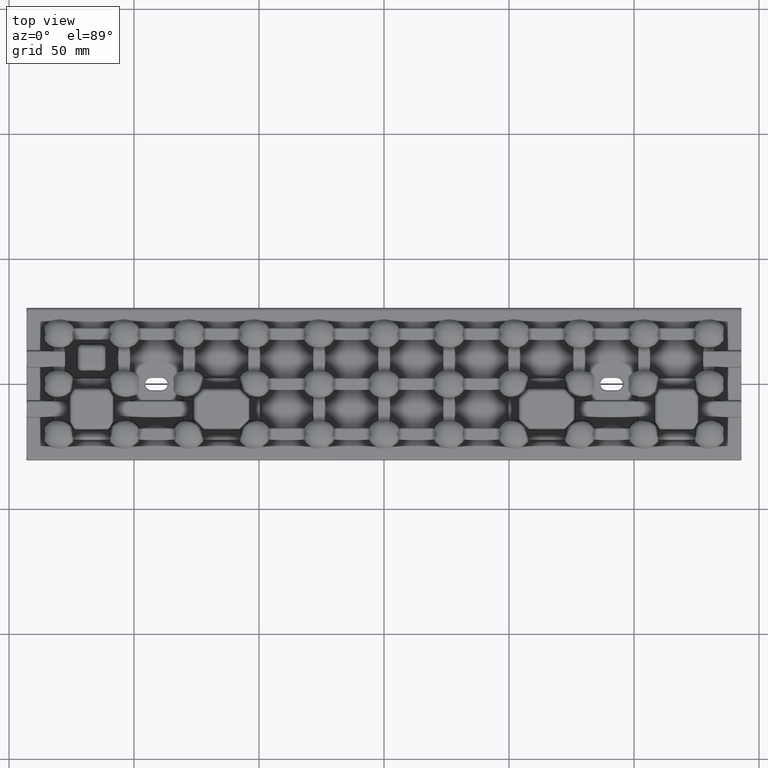
[diagram: clean part render]
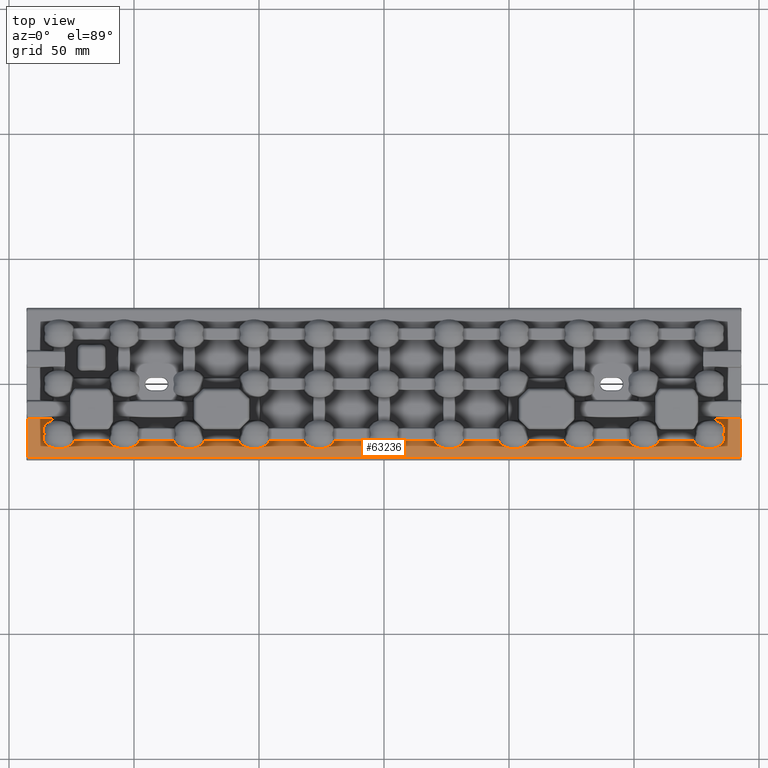
[diagram: same view with one face highlighted and labeled with its STEP entity id]
A machine part, top view. The second image highlights one B-rep face of the part: STEP entity #63236.
In plain terms, the highlighted planar face has unit normal (-0, 0, 1).
Its self-contained STEP definition (entity closure, byte-faithful):
#33 = CARTESIAN_POINT ( 'NONE',  ( 0.0000000000000000000, -13.77131854326631800, 2.000000000000000000 ) ) ;
#42 = EDGE_CURVE ( 'NONE', #24381, #42774, #18755, .T. ) ;
#164 = EDGE_LOOP ( 'NONE', ( #44755, #3819, #52866, #29694, #70680, #57341, #47546, #56463, #61834, #23505, #62755, #31616, #27155, #62822, #54829, #41454, #8503, #44166, #68214, #38834, #44240, #34389, #11275, #31824, #25575, #66596, #58631, #52418, #23872, #55945, #17584, #68420 ) ) ;
#502 = CARTESIAN_POINT ( 'NONE',  ( 0.0000000000000000000, -13.77131854326631800, 2.000000000000000000 ) ) ;
#724 = CARTESIAN_POINT ( 'NONE',  ( 0.0000000000000000000, -22.74142219370179800, 2.000000000000000000 ) ) ;
#894 = CARTESIAN_POINT ( 'NONE',  ( -135.9218705482987000, -23.20788219426480800, 1.999999999999833500 ) ) ;
#1155 = CARTESIAN_POINT ( 'NONE',  ( -130.1653171301655300, -25.88161573803311200, 2.000000000000001800 ) ) ;
#1399 = CARTESIAN_POINT ( 'NONE',  ( -124.5839737115041000, -23.89245808311315500, 2.000000000000043100 ) ) ;
#1511 = EDGE_CURVE ( 'NONE', #49251, #42774, #58076, .T. ) ;
#1854 = VERTEX_POINT ( 'NONE', #47216 ) ;
#2072 = EDGE_CURVE ( 'NONE', #49067, #35729, #5273, .T. ) ;
#2284 = CARTESIAN_POINT ( 'NONE',  ( -3.819095098911098800, -25.03693833895465900, 2.000000000000000400 ) ) ;
#2518 = CARTESIAN_POINT ( 'NONE',  ( 2.409494710444545000, -25.58098130520149000, 2.000000000000000000 ) ) ;
#2634 = CARTESIAN_POINT ( 'NONE',  ( -135.0295530287658900, -15.70677220680920900, 2.000000000000000900 ) ) ;
#2715 = VERTEX_POINT ( 'NONE', #36062 ) ;
#2810 = LINE ( 'NONE', #62675, #31303 ) ;
#2899 = CARTESIAN_POINT ( 'NONE',  ( -30.08719618843136700, -24.89933089372580400, 2.000000000000000400 ) ) ;
#2913 = EDGE_CURVE ( 'NONE', #35729, #58425, #43531, .T. ) ;
#2918 = EDGE_CURVE ( 'NONE', #49251, #61584, #72039, .T. ) ;
#3009 = CARTESIAN_POINT ( 'NONE',  ( -136.1422940776981200, -21.07400144673709600, 2.000000000000005800 ) ) ;
#3139 = CARTESIAN_POINT ( 'NONE',  ( -24.48394804390124300, -25.76204524486451000, 2.000000000000000400 ) ) ;
#3199 = LINE ( 'NONE', #40417, #18265 ) ;
#3205 = CARTESIAN_POINT ( 'NONE',  ( 136.2618435934521100, -18.29336726221924200, 1.999999999999957100 ) ) ;
#3347 = CARTESIAN_POINT ( 'NONE',  ( -82.08719618843134900, -24.89933089372580700, 1.999999999999999600 ) ) ;
#3373 = CARTESIAN_POINT ( 'NONE',  ( -19.87528335633129500, -22.74142219370179800, 2.000000000000000000 ) ) ;
#3435 = CARTESIAN_POINT ( 'NONE',  ( 132.7414221937016500, -14.53910680610571900, 2.000000000000000000 ) ) ;
#3514 = CARTESIAN_POINT ( 'NONE',  ( 97.92453174213517300, -22.88574510278584400, 1.999999999999999100 ) ) ;
#3767 = CARTESIAN_POINT ( 'NONE',  ( 99.91280381156866500, -24.89933089372580000, 1.999999999999999600 ) ) ;
#3809 = CARTESIAN_POINT ( 'NONE',  ( -109.8716287263384900, -23.29291909410071400, 1.999999999999995800 ) ) ;
#3819 = ORIENTED_EDGE ( 'NONE', *, *, #61578, .T. ) ;
#4008 = CARTESIAN_POINT ( 'NONE',  ( 105.5160519560986900, -25.76204524486450600, 1.999999999999998200 ) ) ;
#4040 = CARTESIAN_POINT ( 'NONE',  ( -105.2097865756879100, -25.80791247979607300, 2.000000000000000400 ) ) ;
#4244 = CARTESIAN_POINT ( 'NONE',  ( 110.1247166436687300, -22.74142219370180100, 2.000000000000000000 ) ) ;
#4280 = CARTESIAN_POINT ( 'NONE',  ( -98.69319065038148200, -24.01441757349104100, 2.000000000000001300 ) ) ;
#4440 = EDGE_CURVE ( 'NONE', #58425, #20052, #34469, .T. ) ;
#4443 = CARTESIAN_POINT ( 'NONE',  ( 123.8752834171505100, -22.74142219370180100, 2.000000000000000000 ) ) ;
#4567 = CARTESIAN_POINT ( 'NONE',  ( 126.2228422983642000, -25.05963145252876200, 2.000000000000000400 ) ) ;
#4581 = CARTESIAN_POINT ( 'NONE',  ( -76.48394804390119400, -25.76204524486449900, 2.000000000000001300 ) ) ;
#4662 = CARTESIAN_POINT ( 'NONE',  ( 136.1422941395027500, -18.92599852830038600, 1.999999999993252500 ) ) ;
#4780 = CARTESIAN_POINT ( 'NONE',  ( 0.0000000000000000000, -22.74142219370179800, 2.000000000000000000 ) ) ;
#4805 = CARTESIAN_POINT ( 'NONE',  ( 133.4579265957116300, -25.20361707189319100, 1.999999999999998700 ) ) ;
#4813 = CARTESIAN_POINT ( 'NONE',  ( -71.87528335633130900, -22.74142219370179800, 2.000000000000000000 ) ) ;
#5047 = CARTESIAN_POINT ( 'NONE',  ( 136.2832218297768900, -21.74255756319444900, 1.999999999999999100 ) ) ;
#5067 = CARTESIAN_POINT ( 'NONE',  ( -56.08719618843134900, -24.89933089372579600, 1.999999999999999600 ) ) ;
#5273 = LINE ( 'NONE', #26977, #69450 ) ;
#5298 = CARTESIAN_POINT ( 'NONE',  ( -50.48394804390122200, -25.76204524486449900, 2.000000000000000900 ) ) ;
#5433 = CARTESIAN_POINT ( 'NONE',  ( -136.1422940776982400, -18.92599855326294600, 1.999999999999671400 ) ) ;
#5552 = CARTESIAN_POINT ( 'NONE',  ( -45.87528335633128800, -22.74142219370179800, 2.000000000000000000 ) ) ;
#5730 = CARTESIAN_POINT ( 'NONE',  ( 142.4984859507544300, 0.0000000000000000000, 2.000000000000000000 ) ) ;
#6232 = CARTESIAN_POINT ( 'NONE',  ( -6.014482829595888100, -23.02467077730049300, 1.999999999999996200 ) ) ;
#6613 = CARTESIAN_POINT ( 'NONE',  ( -135.6381149253594700, -23.63379110980486400, 2.000000000000007100 ) ) ;
#6719 = EDGE_CURVE ( 'NONE', #40975, #61584, #14670, .T. ) ;
#6809 = VERTEX_POINT ( 'NONE', #8679 ) ;
#6855 = CARTESIAN_POINT ( 'NONE',  ( -129.1476138462750800, -25.84842763276944700, 2.000000000000002200 ) ) ;
#7005 = CARTESIAN_POINT ( 'NONE',  ( 0.0000000000000000000, 0.0000000000000000000, 2.000000000000000000 ) ) ;
#7096 = CARTESIAN_POINT ( 'NONE',  ( -124.2601434015299400, -23.49627500685725700, 2.000000000000007100 ) ) ;
#7325 = VERTEX_POINT ( 'NONE', #27717 ) ;
#7334 = LINE ( 'NONE', #13604, #43858 ) ;
#7969 = CARTESIAN_POINT ( 'NONE',  ( -2.979219000761800000, -25.38687911242640300, 1.999999999999999100 ) ) ;
#8181 = VERTEX_POINT ( 'NONE', #20942 ) ;
#8228 = CARTESIAN_POINT ( 'NONE',  ( 3.810214397848143500, -25.04115568246543000, 2.000000000000001800 ) ) ;
#8347 = CARTESIAN_POINT ( 'NONE',  ( -135.7238929997454600, -16.47071933913271400, 1.999999999999999600 ) ) ;
#8460 = EDGE_CURVE ( 'NONE', #20052, #73595, #3199, .T. ) ;
#8498 = B_SPLINE_CURVE_WITH_KNOTS ( 'NONE', 3,
 ( #53336, #13459, #6232, #19159, #59092, #24935, #64774, #30657, #70488, #36346, #2284, #42115, #7969, #47855, #13707, #53570, #19402, #59331, #25180, #65002, #30909, #70736, #36590, #2518, #42341, #8228, #48100, #13935, #53817, #19634, #59580, #25406, #65260, #31148, #70977, #36839 ),
 .UNSPECIFIED., .F., .F.,
 ( 4, 2, 2, 2, 2, 2, 2, 2, 2, 2, 2, 2, 2, 2, 2, 2, 2, 4 ),
 ( 0.002273937899494488200, 0.002725115910603036700, 0.003176293921711585300, 0.004078649943928680200, 0.004981005966145776400, 0.005883361988362870900, 0.006785718010579965300, 0.007688074032797061500, 0.008590430055014157800, 0.009492786077231254000, 0.01039514209944835000, 0.01129749812166544600, 0.01310221016609964100, 0.01400456618831674000, 0.01490692221053383800, 0.01580927823275094000, 0.01626045624385948800, 0.01671163425496803200 ),
 .UNSPECIFIED. ) ;
#8503 = ORIENTED_EDGE ( 'NONE', *, *, #41513, .F. ) ;
#8586 = CARTESIAN_POINT ( 'NONE',  ( -29.26557452247500600, -25.28066655375025100, 2.000000000000000000 ) ) ;
#8679 = CARTESIAN_POINT ( 'NONE',  ( 142.4984859507544300, -13.77131854326631800, 2.000000000000000000 ) ) ;
#8830 = CARTESIAN_POINT ( 'NONE',  ( -23.01313341670894300, -25.40276316744352400, 2.000000000000001800 ) ) ;
#8894 = CARTESIAN_POINT ( 'NONE',  ( 136.2385351361121500, -17.64823209951971000, 2.000000000000000000 ) ) ;
#9054 = CARTESIAN_POINT ( 'NONE',  ( -81.26557452247499200, -25.28066655375025500, 2.000000000000000900 ) ) ;
#9101 = EDGE_CURVE ( 'NONE', #40975, #32217, #30757, .T. ) ;
#9474 = CARTESIAN_POINT ( 'NONE',  ( 100.7344254775250200, -25.28066655375025100, 1.999999999999999100 ) ) ;
#9515 = CARTESIAN_POINT ( 'NONE',  ( -109.5195329626777600, -23.79160373366424600, 2.000000000000028400 ) ) ;
#9722 = CARTESIAN_POINT ( 'NONE',  ( 106.9868665832910500, -25.40276316744352400, 2.000000000000000400 ) ) ;
#9757 = CARTESIAN_POINT ( 'NONE',  ( -104.3001023099441700, -25.87772564284690100, 1.999999999999998700 ) ) ;
#10008 = CARTESIAN_POINT ( 'NONE',  ( -98.21100316944138300, -23.42314300327463200, 1.999999999999830800 ) ) ;
#10048 = DIRECTION ( 'NONE',  ( -0.0000000000000000000, 1.000000000000000000, -0.0000000000000000000 ) ) ;
#10278 = CARTESIAN_POINT ( 'NONE',  ( 127.1655502965292600, -25.43801435363306100, 2.000000000000001800 ) ) ;
#10292 = CARTESIAN_POINT ( 'NONE',  ( -75.01313341670891100, -25.40276316744352100, 2.000000000000000900 ) ) ;
#10439 = CARTESIAN_POINT ( 'NONE',  ( 136.1422941395027500, -18.92599852830038600, 1.999999999993252500 ) ) ;
#10520 = CARTESIAN_POINT ( 'NONE',  ( 134.3560911125226800, -24.74748662639309100, 2.000000000000000900 ) ) ;
#10596 = CARTESIAN_POINT ( 'NONE',  ( 0.0000000000000000000, -22.74142219370180100, 2.000000000000000000 ) ) ;
#10782 = CARTESIAN_POINT ( 'NONE',  ( 136.1422941395027000, -21.07400147169969200, 1.999999999993458800 ) ) ;
#10798 = CARTESIAN_POINT ( 'NONE',  ( -55.26557452247497800, -25.28066655375024400, 1.999999999999999600 ) ) ;
#10957 = EDGE_CURVE ( 'NONE', #58102, #32217, #16389, .T. ) ;
#11029 = CARTESIAN_POINT ( 'NONE',  ( -49.01313341670892500, -25.40276316744352400, 2.000000000000000000 ) ) ;
#11275 = ORIENTED_EDGE ( 'NONE', *, *, #65392, .F. ) ;
#11425 = VECTOR ( 'NONE', #23037, 1000.000000000000000 ) ;
#11453 = DIRECTION ( 'NONE',  ( -0.0000000000000000000, 1.000000000000000000, -0.0000000000000000000 ) ) ;
#12206 = LINE ( 'NONE', #65485, #25557 ) ;
#12270 = EDGE_CURVE ( 'NONE', #73595, #6809, #39441, .T. ) ;
#12298 = CARTESIAN_POINT ( 'NONE',  ( 58.12471664366871900, -22.74142219370180100, 2.000000000000000000 ) ) ;
#12333 = CARTESIAN_POINT ( 'NONE',  ( -135.1857516546408000, -24.13450701038100000, 2.000000000000001300 ) ) ;
#12387 = CARTESIAN_POINT ( 'NONE',  ( 58.07542931509948400, -22.88585940025619400, 1.999999999999988700 ) ) ;
#12455 = CARTESIAN_POINT ( 'NONE',  ( 58.01323320651569300, -23.02731689951286100, 2.000000000000064800 ) ) ;
#12535 = CARTESIAN_POINT ( 'NONE',  ( 57.87022910939948900, -23.29524226391948400, 2.000000000000064800 ) ) ;
#12579 = CARTESIAN_POINT ( 'NONE',  ( -128.1420692979925200, -25.69919804812486000, 1.999999999999997100 ) ) ;
#12643 = CARTESIAN_POINT ( 'NONE',  ( 57.78899683055862400, -23.42314300327462500, 1.999999999999831700 ) ) ;
#12656 = CARTESIAN_POINT ( 'NONE',  ( 132.7414221937016500, 0.0000000000000000000, 2.000000000000000000 ) ) ;
#12665 = DIRECTION ( 'NONE',  ( -1.000000000000000000, -0.0000000000000000000, -0.0000000000000000000 ) ) ;
#12688 = VERTEX_POINT ( 'NONE', #40462 ) ;
#12702 = CARTESIAN_POINT ( 'NONE',  ( 57.51995328995989400, -23.79105420026125000, 1.999999999999832100 ) ) ;
#12789 = CARTESIAN_POINT ( 'NONE',  ( 57.30680934961854700, -24.01441757349104100, 1.999999999999998700 ) ) ;
#12823 = CARTESIAN_POINT ( 'NONE',  ( -124.0012696598568500, -23.05978016600126800, 2.000000000000097700 ) ) ;
#12873 = CARTESIAN_POINT ( 'NONE',  ( 56.84746460517043000, -24.41176821703411900, 2.000000000000000000 ) ) ;
#12930 = EDGE_CURVE ( 'NONE', #6809, #38849, #73284, .T. ) ;
#13119 = CARTESIAN_POINT ( 'NONE',  ( 56.59662521674580700, -24.58998557550297900, 2.000000000000000000 ) ) ;
#13186 = CARTESIAN_POINT ( 'NONE',  ( 56.07798419299974300, -24.90442385859973500, 2.000000000000000900 ) ) ;
#13352 = EDGE_CURVE ( 'NONE', #58102, #42145, #7334, .T. ) ;
#13368 = CARTESIAN_POINT ( 'NONE',  ( 55.81021439784814200, -25.04115568246541900, 1.999999999999999100 ) ) ;
#13431 = CARTESIAN_POINT ( 'NONE',  ( 54.98686658329106800, -25.40276316744352400, 1.999999999999999600 ) ) ;
#13459 = CARTESIAN_POINT ( 'NONE',  ( -6.075468257864839600, -22.88574510278582600, 2.000000000000000000 ) ) ;
#13547 = B_SPLINE_CURVE_WITH_KNOTS ( 'NONE', 3,
 ( #71409, #31580, #59998, #37266, #3205, #43029, #8894, #48768, #14617, #54492, #20297, #60238, #26084, #65929, #31833, #71646, #37511, #3435 ),
 .UNSPECIFIED., .F., .F.,
 ( 4, 2, 2, 2, 2, 2, 2, 2, 4 ),
 ( 0.0005961375090278608300, 0.0009801973792107911700, 0.001364257249393721600, 0.002132376989759582500, 0.002900496730125443400, 0.003668616470491304300, 0.004436736210857165200, 0.005204855951223026100, 0.006741095431954745300 ),
 .UNSPECIFIED. ) ;
#13604 = CARTESIAN_POINT ( 'NONE',  ( 0.0000000000000000000, -22.74142219370180100, 2.000000000000000000 ) ) ;
#13611 = CARTESIAN_POINT ( 'NONE',  ( 54.40949471044454100, -25.58098130520150800, 1.999999999999998200 ) ) ;
#13707 = CARTESIAN_POINT ( 'NONE',  ( -2.106550254893620400, -25.64255327724811600, 2.000000000000000000 ) ) ;
#13754 = CARTESIAN_POINT ( 'NONE',  ( 53.51605195609878500, -25.76204524486451000, 1.999999999999999100 ) ) ;
#13908 = CARTESIAN_POINT ( 'NONE',  ( 53.21628997544976900, -25.80702432415001400, 2.000000000000001300 ) ) ;
#13935 = CARTESIAN_POINT ( 'NONE',  ( 4.596625216745813700, -24.58998557550297900, 1.999999999999999600 ) ) ;
#13991 = CARTESIAN_POINT ( 'NONE',  ( 52.61271098874656400, -25.86497171044245400, 2.000000000000002200 ) ) ;
#14045 = CARTESIAN_POINT ( 'NONE',  ( -136.0979048728876500, -17.14833474724197200, 1.999999999999998200 ) ) ;
#14075 = CARTESIAN_POINT ( 'NONE',  ( 52.30840368988429400, -25.87750731758197300, 2.000000000000001800 ) ) ;
#14086 = CARTESIAN_POINT ( 'NONE',  ( 51.69989769005582800, -25.87772564284692200, 2.000000000000002200 ) ) ;
#14151 = CARTESIAN_POINT ( 'NONE',  ( 51.39582775820940000, -25.86552105935654200, 2.000000000000000900 ) ) ;
#14228 = CARTESIAN_POINT ( 'NONE',  ( -71.87528335633130900, -22.74142219370179800, 2.000000000000000000 ) ) ;
#14233 = CARTESIAN_POINT ( 'NONE',  ( 50.79021342431210700, -25.80791247979607000, 2.000000000000001300 ) ) ;
#14297 = CARTESIAN_POINT ( 'NONE',  ( -28.40021609866272500, -25.56753033933710000, 2.000000000000000900 ) ) ;
#14409 = CARTESIAN_POINT ( 'NONE',  ( 50.48887373261408100, -25.76286280273490400, 2.000000000000001800 ) ) ;
#14529 = CARTESIAN_POINT ( 'NONE',  ( -84.07546825786485600, -22.88574510278583700, 2.000000000000000000 ) ) ;
#14556 = CARTESIAN_POINT ( 'NONE',  ( -21.92201580700027100, -24.90442385859973100, 2.000000000000000400 ) ) ;
#14590 = CARTESIAN_POINT ( 'NONE',  ( 49.89344974510638100, -25.64255327724809800, 2.000000000000001300 ) ) ;
#14617 = CARTESIAN_POINT ( 'NONE',  ( 135.9916550852441600, -16.91178437658260900, 2.000000000000001300 ) ) ;
#14670 = B_SPLINE_CURVE_WITH_KNOTS ( 'NONE', 3,
 ( #16016, #16580, #16492, #15780, #15644, #15553, #15542, #15458, #15299, #15058, #14974, #14829, #14818, #14733, #14590, #14409, #14233, #14151, #14086, #14075, #13991, #13908, #13754, #13611, #13431, #13368, #13186, #13119, #12873, #12789, #12702, #12643, #12535, #12455, #12387, #12298 ),
 .UNSPECIFIED., .F., .F.,
 ( 4, 2, 2, 2, 2, 2, 2, 2, 2, 2, 2, 2, 2, 2, 2, 2, 2, 4 ),
 ( 0.002273937899494497300, 0.002725115910603046300, 0.003176293921711595200, 0.004078649943928693200, 0.004981005966145791100, 0.005883361988362889900, 0.006785718010579987900, 0.007688074032797085000, 0.008590430055014183800, 0.009492786077231281700, 0.01039514209944838000, 0.01129749812166547900, 0.01310221016609965100, 0.01400456618831674700, 0.01490692221053384700, 0.01580927823275094700, 0.01626045624385949500, 0.01671163425496804300 ),
 .UNSPECIFIED. ) ;
#14733 = CARTESIAN_POINT ( 'NONE',  ( 49.59978390133729000, -25.56753033933710000, 1.999999999999999600 ) ) ;
#14766 = CARTESIAN_POINT ( 'NONE',  ( -80.40021609866271000, -25.56753033933710400, 2.000000000000000000 ) ) ;
#14818 = CARTESIAN_POINT ( 'NONE',  ( 49.02078099923822000, -25.38687911242641300, 2.000000000000000400 ) ) ;
#14829 = CARTESIAN_POINT ( 'NONE',  ( 48.73442547752503600, -25.28066655375026500, 2.000000000000001800 ) ) ;
#14974 = CARTESIAN_POINT ( 'NONE',  ( 48.18090490108891500, -25.03693833895467000, 2.000000000000001800 ) ) ;
#15058 = CARTESIAN_POINT ( 'NONE',  ( 47.91280381156867200, -24.89933089372581400, 2.000000000000000400 ) ) ;
#15177 = CARTESIAN_POINT ( 'NONE',  ( 101.5997839013372600, -25.56753033933709300, 2.000000000000000400 ) ) ;
#15215 = CARTESIAN_POINT ( 'NONE',  ( -108.8517063202282300, -24.40856611914085800, 1.999999999999931600 ) ) ;
#15292 = AXIS2_PLACEMENT_3D ( 'NONE', #7005, #30893, #70721 ) ;
#15299 = CARTESIAN_POINT ( 'NONE',  ( 47.39758385011843700, -24.58596811551365100, 2.000000000000000400 ) ) ;
#15422 = CARTESIAN_POINT ( 'NONE',  ( 108.0779841929997400, -24.90442385859971700, 2.000000000000000000 ) ) ;
#15458 = CARTESIAN_POINT ( 'NONE',  ( 47.14829367977184700, -24.40856611914085800, 1.999999999999932100 ) ) ;
#15459 = CARTESIAN_POINT ( 'NONE',  ( -103.3872890112534300, -25.86497171044247500, 2.000000000000001300 ) ) ;
#15542 = CARTESIAN_POINT ( 'NONE',  ( 46.68903796839897800, -24.01034952542513100, 1.999999999999932500 ) ) ;
#15553 = CARTESIAN_POINT ( 'NONE',  ( 46.48046703732220000, -23.79160373366426000, 2.000000000000028000 ) ) ;
#15573 = VECTOR ( 'NONE', #64696, 1000.000000000000000 ) ;
#15644 = CARTESIAN_POINT ( 'NONE',  ( 46.21094319566911000, -23.42307350241072300, 2.000000000000029300 ) ) ;
#15702 = CARTESIAN_POINT ( 'NONE',  ( -97.98676679348432100, -23.02731689951287600, 2.000000000000065700 ) ) ;
#15723 = CARTESIAN_POINT ( 'NONE',  ( -135.9868449055932700, -20.36549531281011100, 2.000000000000000400 ) ) ;
#15780 = CARTESIAN_POINT ( 'NONE',  ( 46.12837127366150000, -23.29291909410070700, 1.999999999999995800 ) ) ;
#15981 = CARTESIAN_POINT ( 'NONE',  ( 128.1458189536985200, -25.69997739440759700, 1.999999999999996200 ) ) ;
#15992 = CARTESIAN_POINT ( 'NONE',  ( -73.92201580700027800, -24.90442385859973800, 1.999999999999999100 ) ) ;
#16016 = CARTESIAN_POINT ( 'NONE',  ( 45.87528341715049900, -22.74142219370180100, 2.000000000000000000 ) ) ;
#16049 = EDGE_CURVE ( 'NONE', #38849, #61207, #45426, .T. ) ;
#16221 = CARTESIAN_POINT ( 'NONE',  ( 135.1773489027272900, -24.14248106700900100, 2.000000000000004400 ) ) ;
#16389 = B_SPLINE_CURVE_WITH_KNOTS ( 'NONE', 3,
 ( #29853, #31411, #30576, #29764, #29616, #29673, #29527, #29415, #29352, #29252, #29145, #29094, #28997, #28901, #28842, #28751, #28663, #28595, #28499, #28397, #28342, #28245, #28152, #28094, #28005, #27907, #27760, #27849, #27657, #27604, #27528, #27372, #27284, #27129, #27035, #26877 ),
 .UNSPECIFIED., .F., .F.,
 ( 4, 2, 2, 2, 2, 2, 2, 2, 2, 2, 2, 2, 2, 2, 2, 2, 2, 4 ),
 ( 0.002273937899494488200, 0.002725115910603044500, 0.003176293921711600400, 0.004078649943928698400, 0.004981005966145797200, 0.005883361988362895100, 0.006785718010579991400, 0.007688074032797091000, 0.008590430055014189000, 0.009492786077231286900, 0.01039514209944838500, 0.01129749812166548100, 0.01310221016609968700, 0.01400456618831678900, 0.01490692221053388800, 0.01580927823275098800, 0.01626045624385954000, 0.01671163425496808800 ),
 .UNSPECIFIED. ) ;
#16470 = CARTESIAN_POINT ( 'NONE',  ( -54.40021609866271000, -25.56753033933711100, 2.000000000000000000 ) ) ;
#16492 = CARTESIAN_POINT ( 'NONE',  ( 45.98551717040410800, -23.02467077730050300, 1.999999999999996700 ) ) ;
#16554 = CARTESIAN_POINT ( 'NONE',  ( 136.0389785876762700, -19.27654512880961200, 1.999999999993252500 ) ) ;
#16580 = CARTESIAN_POINT ( 'NONE',  ( 45.92453174213515200, -22.88574510278583700, 1.999999999999999100 ) ) ;
#16673 = LINE ( 'NONE', #53349, #20245 ) ;
#16678 = EDGE_CURVE ( 'NONE', #61727, #42145, #8498, .T. ) ;
#16709 = CARTESIAN_POINT ( 'NONE',  ( -47.92201580700026400, -24.90442385859972800, 2.000000000000001300 ) ) ;
#17584 = ORIENTED_EDGE ( 'NONE', *, *, #20953, .F. ) ;
#17749 = CARTESIAN_POINT ( 'NONE',  ( -136.1422940776981200, -21.07400144673709600, 2.000000000000005800 ) ) ;
#18010 = CARTESIAN_POINT ( 'NONE',  ( -134.3671399652177200, -24.74056889869420300, 2.000000000000000000 ) ) ;
#18254 = CARTESIAN_POINT ( 'NONE',  ( -127.1644983428654400, -25.43745353979287700, 1.999999999999999100 ) ) ;
#18265 = VECTOR ( 'NONE', #40589, 1000.000000000000000 ) ;
#18510 = CARTESIAN_POINT ( 'NONE',  ( -123.8752833563312900, -22.74142219370179800, 2.000000000000000000 ) ) ;
#18530 = CARTESIAN_POINT ( 'NONE',  ( 72.21094319566911700, -23.42307350241073700, 2.000000000000029300 ) ) ;
#18755 = LINE ( 'NONE', #66905, #66037 ) ;
#18793 = VERTEX_POINT ( 'NONE', #36952 ) ;
#19159 = CARTESIAN_POINT ( 'NONE',  ( -5.871628726338489200, -23.29291909410070400, 1.999999999999996200 ) ) ;
#19402 = CARTESIAN_POINT ( 'NONE',  ( -1.209786575687903800, -25.80791247979607300, 2.000000000000001300 ) ) ;
#19530 = EDGE_CURVE ( 'NONE', #61727, #7325, #12206, .T. ) ;
#19634 = CARTESIAN_POINT ( 'NONE',  ( 5.306809349618572600, -24.01441757349103100, 1.999999999999998700 ) ) ;
#19756 = CARTESIAN_POINT ( 'NONE',  ( -136.2704323777130400, -17.90288855391277800, 1.999999999999965800 ) ) ;
#19758 = CARTESIAN_POINT ( 'NONE',  ( -32.01448282959591300, -23.02467077730051100, 1.999999999999995800 ) ) ;
#19794 = VECTOR ( 'NONE', #51365, 1000.000000000000000 ) ;
#20001 = CARTESIAN_POINT ( 'NONE',  ( -27.51112626738595800, -25.76286280273488300, 2.000000000000001300 ) ) ;
#20021 = CARTESIAN_POINT ( 'NONE',  ( 71.87528341715051300, -22.74142219370180100, 2.000000000000000000 ) ) ;
#20052 = VERTEX_POINT ( 'NONE', #70628 ) ;
#20201 = CARTESIAN_POINT ( 'NONE',  ( -84.01448282959587700, -23.02467077730048200, 1.999999999999995300 ) ) ;
#20229 = CARTESIAN_POINT ( 'NONE',  ( -21.15253539482959500, -24.41176821703411500, 2.000000000000000000 ) ) ;
#20245 = VECTOR ( 'NONE', #41391, 1000.000000000000000 ) ;
#20297 = CARTESIAN_POINT ( 'NONE',  ( 135.5611112412837300, -16.26431530748070400, 1.999999999999999600 ) ) ;
#20439 = CARTESIAN_POINT ( 'NONE',  ( -79.51112626738594700, -25.76286280273488700, 2.000000000000000900 ) ) ;
#20641 = CARTESIAN_POINT ( 'NONE',  ( 97.98551717040410800, -23.02467077730050300, 1.999999999999996200 ) ) ;
#20890 = CARTESIAN_POINT ( 'NONE',  ( 102.4888737326140400, -25.76286280273488700, 2.000000000000000900 ) ) ;
#20924 = CARTESIAN_POINT ( 'NONE',  ( -108.0871961884313600, -24.89933089372580700, 2.000000000000000400 ) ) ;
#20942 = CARTESIAN_POINT ( 'NONE',  ( -84.12471658284951600, -22.74142219370179800, 2.000000000000000000 ) ) ;
#20953 = EDGE_CURVE ( 'NONE', #34795, #61207, #13547, .T. ) ;
#21088 = CARTESIAN_POINT ( 'NONE',  ( 32.12471664366871200, -22.74142219370180100, 2.000000000000000000 ) ) ;
#21134 = CARTESIAN_POINT ( 'NONE',  ( 108.8474646051704200, -24.41176821703411200, 2.000000000000000000 ) ) ;
#21176 = CARTESIAN_POINT ( 'NONE',  ( -102.4839480439012500, -25.76204524486451300, 2.000000000000000900 ) ) ;
#21421 = CARTESIAN_POINT ( 'NONE',  ( -97.87528335633130900, -22.74142219370179800, 2.000000000000000000 ) ) ;
#21447 = CARTESIAN_POINT ( 'NONE',  ( -136.0389785381937300, -19.27654512281430900, 2.000000000000000000 ) ) ;
#21470 = CARTESIAN_POINT ( 'NONE',  ( 123.9997907848322600, -23.05678703691174300, 2.000000000000004900 ) ) ;
#21716 = CARTESIAN_POINT ( 'NONE',  ( 129.1529713051907900, -25.84893686805750000, 1.999999999999975400 ) ) ;
#21727 = CARTESIAN_POINT ( 'NONE',  ( -73.15253539482959900, -24.41176821703411900, 1.999999999999999600 ) ) ;
#21800 = VECTOR ( 'NONE', #12665, 1000.000000000000000 ) ;
#21951 = CARTESIAN_POINT ( 'NONE',  ( 135.6355374456140300, -23.63701069212872600, 2.000000000000000400 ) ) ;
#21966 = CARTESIAN_POINT ( 'NONE',  ( -58.01448282959592000, -23.02467077730049300, 1.999999999999996700 ) ) ;
#22212 = CARTESIAN_POINT ( 'NONE',  ( -53.51112626738594700, -25.76286280273488000, 2.000000000000000400 ) ) ;
#22465 = CARTESIAN_POINT ( 'NONE',  ( -47.15253539482959900, -24.41176821703411500, 2.000000000000000000 ) ) ;
#23037 = DIRECTION ( 'NONE',  ( -1.000000000000000000, 0.0000000000000000000, -0.0000000000000000000 ) ) ;
#23391 = DIRECTION ( 'NONE',  ( -1.000000000000000000, -0.0000000000000000000, -0.0000000000000000000 ) ) ;
#23505 = ORIENTED_EDGE ( 'NONE', *, *, #13352, .T. ) ;
#23533 = CARTESIAN_POINT ( 'NONE',  ( -136.2250101643734300, -21.39948659705529700, 1.999999999999894300 ) ) ;
#23728 = EDGE_CURVE ( 'NONE', #34795, #2715, #42732, .T. ) ;
#23790 = CARTESIAN_POINT ( 'NONE',  ( -133.4682248671783200, -25.19933636211294800, 2.000000000000000400 ) ) ;
#23813 = CARTESIAN_POINT ( 'NONE',  ( 0.0000000000000000000, -22.74142219370180100, 2.000000000000000000 ) ) ;
#23839 = EDGE_CURVE ( 'NONE', #35243, #7325, #37223, .T. ) ;
#23845 = B_SPLINE_CURVE_WITH_KNOTS ( 'NONE', 3,
 ( #55646, #44425, #21966, #61867, #27715, #67532, #33411, #73302, #39138, #5067, #44919, #10798, #50652, #16470, #56382, #22212, #62102, #27960, #67780, #33643, #73525, #39387, #5298, #45165, #11029, #50895, #16709, #56617, #22465, #62346, #28203, #68030, #33890, #73770, #39629, #5552 ),
 .UNSPECIFIED., .F., .F.,
 ( 4, 2, 2, 2, 2, 2, 2, 2, 2, 2, 2, 2, 2, 2, 2, 2, 2, 4 ),
 ( 0.002273937899494486500, 0.002725115910603034100, 0.003176293921711582200, 0.004078649943928677600, 0.004981005966145773800, 0.005883361988362869100, 0.006785718010579965300, 0.007688074032797061500, 0.008590430055014156000, 0.009492786077231252200, 0.01039514209944834700, 0.01129749812166544300, 0.01310221016609961300, 0.01400456618831670200, 0.01490692221053379000, 0.01580927823275087700, 0.01626045624385942200, 0.01671163425496796300 ),
 .UNSPECIFIED. ) ;
#23872 = ORIENTED_EDGE ( 'NONE', *, *, #12930, .T. ) ;
#24038 = CARTESIAN_POINT ( 'NONE',  ( -126.2328227882827900, -25.06442460411629700, 1.999999999999998700 ) ) ;
#24361 = VECTOR ( 'NONE', #11453, 1000.000000000000000 ) ;
#24381 = VERTEX_POINT ( 'NONE', #43848 ) ;
#24935 = CARTESIAN_POINT ( 'NONE',  ( -5.519532962677777400, -23.79160373366425700, 2.000000000000027500 ) ) ;
#25180 = CARTESIAN_POINT ( 'NONE',  ( -0.3001023099441837400, -25.87772564284689700, 1.999999999999998700 ) ) ;
#25406 = CARTESIAN_POINT ( 'NONE',  ( 5.788996830558645900, -23.42314300327464600, 1.999999999999830800 ) ) ;
#25519 = CARTESIAN_POINT ( 'NONE',  ( -136.2496153962566200, -18.42130455956766300, 1.999999999999998200 ) ) ;
#25522 = CARTESIAN_POINT ( 'NONE',  ( -31.78905680433091200, -23.42307350241072700, 2.000000000000028900 ) ) ;
#25557 = VECTOR ( 'NONE', #31379, 1000.000000000000000 ) ;
#25575 = ORIENTED_EDGE ( 'NONE', *, *, #2913, .T. ) ;
#25768 = CARTESIAN_POINT ( 'NONE',  ( -26.60417224179061100, -25.86552105935654600, 1.999999999999999600 ) ) ;
#25794 = EDGE_CURVE ( 'NONE', #35243, #12688, #2810, .T. ) ;
#25986 = CARTESIAN_POINT ( 'NONE',  ( -83.78905680433088300, -23.42307350241071600, 2.000000000000028400 ) ) ;
#26020 = CARTESIAN_POINT ( 'NONE',  ( -20.48004671004013800, -23.79105420026124700, 1.999999999999832600 ) ) ;
#26084 = CARTESIAN_POINT ( 'NONE',  ( 135.0098641867538400, -15.72138528649189300, 2.000000000000141700 ) ) ;
#26231 = CARTESIAN_POINT ( 'NONE',  ( -78.60417224179060700, -25.86552105935654200, 1.999999999999999100 ) ) ;
#26408 = CARTESIAN_POINT ( 'NONE',  ( 98.21094319566906000, -23.42307350241071600, 2.000000000000028900 ) ) ;
#26443 = CARTESIAN_POINT ( 'NONE',  ( -110.0754682578648700, -22.88574510278584000, 2.000000000000000400 ) ) ;
#26642 = CARTESIAN_POINT ( 'NONE',  ( 103.3958277582093900, -25.86552105935654200, 2.000000000000001300 ) ) ;
#26679 = CARTESIAN_POINT ( 'NONE',  ( -107.2655745224750100, -25.28066655375026200, 2.000000000000000400 ) ) ;
#26877 = CARTESIAN_POINT ( 'NONE',  ( 32.12471664366871200, -22.74142219370180100, 2.000000000000000000 ) ) ;
#26889 = CARTESIAN_POINT ( 'NONE',  ( 109.5199532899598700, -23.79105420026124300, 1.999999999999830800 ) ) ;
#26928 = CARTESIAN_POINT ( 'NONE',  ( -101.0131334167089000, -25.40276316744351300, 1.999999999999998700 ) ) ;
#26977 = CARTESIAN_POINT ( 'NONE',  ( -132.7414221937016500, 0.0000000000000000000, 2.000000000000000000 ) ) ;
#27035 = CARTESIAN_POINT ( 'NONE',  ( 32.07542931509947000, -22.88585940025619800, 1.999999999999988700 ) ) ;
#27129 = CARTESIAN_POINT ( 'NONE',  ( 32.01323320651571400, -23.02731689951288300, 2.000000000000067100 ) ) ;
#27155 = ORIENTED_EDGE ( 'NONE', *, *, #23839, .F. ) ;
#27230 = CARTESIAN_POINT ( 'NONE',  ( 124.2604177760863700, -23.49660212520230100, 2.000000000000094100 ) ) ;
#27284 = CARTESIAN_POINT ( 'NONE',  ( 31.87022910939949600, -23.29524226391949800, 2.000000000000066600 ) ) ;
#27372 = CARTESIAN_POINT ( 'NONE',  ( 31.78899683055863400, -23.42314300327462800, 1.999999999999832600 ) ) ;
#27466 = CARTESIAN_POINT ( 'NONE',  ( 130.1708131619413700, -25.88151845441947400, 1.999999999999998200 ) ) ;
#27478 = CARTESIAN_POINT ( 'NONE',  ( -72.48004671004015600, -23.79105420026126100, 1.999999999999831200 ) ) ;
#27528 = CARTESIAN_POINT ( 'NONE',  ( 31.51995328995987900, -23.79105420026124300, 1.999999999999832100 ) ) ;
#27599 = VERTEX_POINT ( 'NONE', #14228 ) ;
#27604 = CARTESIAN_POINT ( 'NONE',  ( 31.30680934961855400, -24.01441757349104100, 2.000000000000000000 ) ) ;
#27657 = CARTESIAN_POINT ( 'NONE',  ( 30.84746460517041200, -24.41176821703410800, 1.999999999999999600 ) ) ;
#27701 = CARTESIAN_POINT ( 'NONE',  ( 135.9177729992307200, -23.21528860318215200, 2.000000000000015100 ) ) ;
#27715 = CARTESIAN_POINT ( 'NONE',  ( -57.78905680433091200, -23.42307350241072300, 2.000000000000029300 ) ) ;
#27717 = CARTESIAN_POINT ( 'NONE',  ( -19.87528335633129500, -22.74142219370179800, 2.000000000000000000 ) ) ;
#27760 = CARTESIAN_POINT ( 'NONE',  ( 30.07798419299973600, -24.90442385859972800, 2.000000000000000400 ) ) ;
#27777 = CARTESIAN_POINT ( 'NONE',  ( 58.12471664366871900, -22.74142219370180100, 2.000000000000000000 ) ) ;
#27849 = CARTESIAN_POINT ( 'NONE',  ( 30.59662521674579900, -24.58998557550298300, 2.000000000000000000 ) ) ;
#27907 = CARTESIAN_POINT ( 'NONE',  ( 29.81021439784814200, -25.04115568246541900, 1.999999999999999100 ) ) ;
#27960 = CARTESIAN_POINT ( 'NONE',  ( -52.60417224179060000, -25.86552105935652400, 2.000000000000000900 ) ) ;
#28005 = CARTESIAN_POINT ( 'NONE',  ( 28.98686658329107900, -25.40276316744351700, 1.999999999999999100 ) ) ;
#28048 = CARTESIAN_POINT ( 'NONE',  ( 135.9868455307761500, -20.36550123074935900, 2.000000000000000000 ) ) ;
#28094 = CARTESIAN_POINT ( 'NONE',  ( 28.40949471044455200, -25.58098130520148700, 1.999999999999999600 ) ) ;
#28152 = CARTESIAN_POINT ( 'NONE',  ( 27.51605195609879900, -25.76204524486450600, 1.999999999999999100 ) ) ;
#28176 = EDGE_CURVE ( 'NONE', #69705, #12688, #23845, .T. ) ;
#28203 = CARTESIAN_POINT ( 'NONE',  ( -46.48004671004013500, -23.79105420026125000, 1.999999999999832600 ) ) ;
#28245 = CARTESIAN_POINT ( 'NONE',  ( 27.21628997544979000, -25.80702432415000300, 2.000000000000000900 ) ) ;
#28342 = CARTESIAN_POINT ( 'NONE',  ( 26.61271098874657100, -25.86497171044246100, 2.000000000000000000 ) ) ;
#28397 = CARTESIAN_POINT ( 'NONE',  ( 26.30840368988429700, -25.87750731758199800, 2.000000000000002200 ) ) ;
#28499 = CARTESIAN_POINT ( 'NONE',  ( 25.69989769005581000, -25.87772564284687200, 2.000000000000001300 ) ) ;
#28595 = CARTESIAN_POINT ( 'NONE',  ( 25.39582775820941100, -25.86552105935654600, 2.000000000000000400 ) ) ;
#28663 = CARTESIAN_POINT ( 'NONE',  ( 24.79021342431210000, -25.80791247979607300, 2.000000000000000400 ) ) ;
#28751 = CARTESIAN_POINT ( 'NONE',  ( 24.48887373261407400, -25.76286280273488700, 2.000000000000000900 ) ) ;
#28842 = CARTESIAN_POINT ( 'NONE',  ( 23.89344974510638100, -25.64255327724811600, 2.000000000000000900 ) ) ;
#28901 = CARTESIAN_POINT ( 'NONE',  ( 23.59978390133730700, -25.56753033933709700, 1.999999999999998200 ) ) ;
#28997 = CARTESIAN_POINT ( 'NONE',  ( 23.02078099923820200, -25.38687911242640600, 1.999999999999999100 ) ) ;
#29094 = CARTESIAN_POINT ( 'NONE',  ( 22.73442547752502900, -25.28066655375027200, 1.999999999999999600 ) ) ;
#29145 = CARTESIAN_POINT ( 'NONE',  ( 22.18090490108890500, -25.03693833895466600, 1.999999999999999600 ) ) ;
#29252 = CARTESIAN_POINT ( 'NONE',  ( 21.91280381156866900, -24.89933089372580400, 1.999999999999999100 ) ) ;
#29268 = CARTESIAN_POINT ( 'NONE',  ( -136.2708829629528400, -21.90890649355692300, 1.999999999999999600 ) ) ;
#29352 = CARTESIAN_POINT ( 'NONE',  ( 21.39758385011843700, -24.58596811551364400, 1.999999999999999600 ) ) ;
#29415 = CARTESIAN_POINT ( 'NONE',  ( 21.14829367977186400, -24.40856611914085800, 1.999999999999932100 ) ) ;
#29527 = CARTESIAN_POINT ( 'NONE',  ( 20.68903796839898100, -24.01034952542512400, 1.999999999999932100 ) ) ;
#29546 = CARTESIAN_POINT ( 'NONE',  ( -132.1871808194440000, -25.64495851025165200, 2.000000000000000900 ) ) ;
#29616 = CARTESIAN_POINT ( 'NONE',  ( 20.21094319566911300, -23.42307350241071600, 2.000000000000029300 ) ) ;
#29673 = CARTESIAN_POINT ( 'NONE',  ( 20.48046703732221700, -23.79160373366426000, 2.000000000000028900 ) ) ;
#29694 = ORIENTED_EDGE ( 'NONE', *, *, #42, .T. ) ;
#29764 = CARTESIAN_POINT ( 'NONE',  ( 20.12837127366150700, -23.29291909410070700, 1.999999999999996200 ) ) ;
#29776 = CARTESIAN_POINT ( 'NONE',  ( -125.3521019434021600, -24.55888464460544200, 2.000000000000000400 ) ) ;
#29853 = CARTESIAN_POINT ( 'NONE',  ( 19.87528341715049500, -22.74142219370180100, 2.000000000000000000 ) ) ;
#30494 = VERTEX_POINT ( 'NONE', #5433 ) ;
#30576 = CARTESIAN_POINT ( 'NONE',  ( 19.98551717040409800, -23.02467077730049300, 1.999999999999996700 ) ) ;
#30657 = CARTESIAN_POINT ( 'NONE',  ( -4.851706320228141900, -24.40856611914085800, 1.999999999999932100 ) ) ;
#30757 = LINE ( 'NONE', #64537, #15573 ) ;
#30893 = DIRECTION ( 'NONE',  ( -0.0000000000000000000, 0.0000000000000000000, 1.000000000000000000 ) ) ;
#30909 = CARTESIAN_POINT ( 'NONE',  ( 0.6127109887465745900, -25.86497171044246500, 1.999999999999999600 ) ) ;
#31021 = CARTESIAN_POINT ( 'NONE',  ( -133.7031195810451700, -14.90942886705081000, 2.000000000000000900 ) ) ;
#31148 = CARTESIAN_POINT ( 'NONE',  ( 6.013233206515714400, -23.02731689951288600, 2.000000000000067100 ) ) ;
#31260 = CARTESIAN_POINT ( 'NONE',  ( -136.1788343115358400, -18.80201862068066600, 1.999999999999998700 ) ) ;
#31262 = CARTESIAN_POINT ( 'NONE',  ( -31.31096203160104700, -24.01034952542512700, 1.999999999999931200 ) ) ;
#31303 = VECTOR ( 'NONE', #68362, 1000.000000000000000 ) ;
#31379 = DIRECTION ( 'NONE',  ( -1.000000000000000000, -0.0000000000000000000, -0.0000000000000000000 ) ) ;
#31411 = CARTESIAN_POINT ( 'NONE',  ( 19.92453174213515900, -22.88574510278582600, 2.000000000000000400 ) ) ;
#31489 = EDGE_CURVE ( 'NONE', #69705, #27599, #16673, .T. ) ;
#31518 = CARTESIAN_POINT ( 'NONE',  ( -25.69159631011572700, -25.87750731758198700, 2.000000000000001800 ) ) ;
#31580 = CARTESIAN_POINT ( 'NONE',  ( 136.1784872584689800, -18.80319635000328300, 1.999999999999999600 ) ) ;
#31616 = ORIENTED_EDGE ( 'NONE', *, *, #19530, .T. ) ;
#31733 = CARTESIAN_POINT ( 'NONE',  ( -83.31096203160105100, -24.01034952542512000, 1.999999999999932100 ) ) ;
#31764 = CARTESIAN_POINT ( 'NONE',  ( -20.12977089060052500, -23.29524226391949800, 2.000000000000064800 ) ) ;
#31824 = ORIENTED_EDGE ( 'NONE', *, *, #2072, .T. ) ;
#31833 = CARTESIAN_POINT ( 'NONE',  ( 134.3808463589189400, -15.27342407695920000, 1.999999999999999600 ) ) ;
#31906 = CARTESIAN_POINT ( 'NONE',  ( 97.87528341715048400, -22.74142219370180100, 2.000000000000000000 ) ) ;
#32145 = CARTESIAN_POINT ( 'NONE',  ( 98.68903796839894900, -24.01034952542512400, 1.999999999999932500 ) ) ;
#32217 = VERTEX_POINT ( 'NONE', #21088 ) ;
#32293 = VERTEX_POINT ( 'NONE', #4443 ) ;
#32378 = CARTESIAN_POINT ( 'NONE',  ( 104.3084036898843000, -25.87750731758197600, 2.000000000000001300 ) ) ;
#32410 = CARTESIAN_POINT ( 'NONE',  ( -106.4002160986627000, -25.56753033933710700, 2.000000000000001300 ) ) ;
#32458 = CARTESIAN_POINT ( 'NONE',  ( 123.8752834171505100, -22.74142219370180100, 2.000000000000000000 ) ) ;
#32611 = CARTESIAN_POINT ( 'NONE',  ( 109.8702291093994600, -23.29524226391948700, 2.000000000000063500 ) ) ;
#32650 = CARTESIAN_POINT ( 'NONE',  ( -99.92201580700027800, -24.90442385859972400, 2.000000000000000000 ) ) ;
#32929 = CARTESIAN_POINT ( 'NONE',  ( 124.8146517419494000, -24.13266126593802200, 2.000000000000000000 ) ) ;
#32938 = CARTESIAN_POINT ( 'NONE',  ( -77.69159631011571300, -25.87750731758199800, 1.999999999999998200 ) ) ;
#33105 = DIRECTION ( 'NONE',  ( 0.0000000000000000000, -1.000000000000000000, 0.0000000000000000000 ) ) ;
#33165 = CARTESIAN_POINT ( 'NONE',  ( 131.5221919406147300, -25.78263844890145900, 2.000000000000001300 ) ) ;
#33180 = CARTESIAN_POINT ( 'NONE',  ( -72.12977089060052500, -23.29524226391949400, 2.000000000000066600 ) ) ;
#33234 = CARTESIAN_POINT ( 'NONE',  ( -32.12471658284950800, -22.74142219370179800, 2.000000000000000000 ) ) ;
#33392 = CARTESIAN_POINT ( 'NONE',  ( 136.1281024810783700, -22.74817846352118500, 1.999999999999897200 ) ) ;
#33411 = CARTESIAN_POINT ( 'NONE',  ( -57.31096203160105100, -24.01034952542512400, 1.999999999999931600 ) ) ;
#33643 = CARTESIAN_POINT ( 'NONE',  ( -51.69159631011568500, -25.87750731758198000, 2.000000000000001300 ) ) ;
#33727 = CARTESIAN_POINT ( 'NONE',  ( 136.1422941395027000, -21.07400147169969200, 1.999999999993458800 ) ) ;
#33890 = CARTESIAN_POINT ( 'NONE',  ( -46.12977089060050400, -23.29524226391949100, 2.000000000000066600 ) ) ;
#34389 = ORIENTED_EDGE ( 'NONE', *, *, #64432, .T. ) ;
#34469 = LINE ( 'NONE', #34559, #47907 ) ;
#34559 = CARTESIAN_POINT ( 'NONE',  ( -142.4984859507544300, 0.0000000000000000000, 2.000000000000000000 ) ) ;
#34795 = VERTEX_POINT ( 'NONE', #10439 ) ;
#34957 = CARTESIAN_POINT ( 'NONE',  ( -136.1429460162511600, -22.75040999429770800, 1.999999999999833900 ) ) ;
#35205 = CARTESIAN_POINT ( 'NONE',  ( -130.5049350587613300, -25.87220278261454400, 1.999999999999999100 ) ) ;
#35243 = VERTEX_POINT ( 'NONE', #33234 ) ;
#35439 = CARTESIAN_POINT ( 'NONE',  ( -6.124716582849489800, -22.74142219370179800, 2.000000000000000000 ) ) ;
#35444 = CARTESIAN_POINT ( 'NONE',  ( -124.8256429735101100, -24.13106410958134200, 2.000000000000043100 ) ) ;
#35539 = CARTESIAN_POINT ( 'NONE',  ( 132.7414221937016500, -14.53910680610571900, 2.000000000000000000 ) ) ;
#35729 = VERTEX_POINT ( 'NONE', #60437 ) ;
#35751 = DIRECTION ( 'NONE',  ( -1.000000000000000000, 0.0000000000000000000, -0.0000000000000000000 ) ) ;
#36062 = CARTESIAN_POINT ( 'NONE',  ( 136.1422941395027000, -21.07400147169969200, 1.999999999993458800 ) ) ;
#36346 = CARTESIAN_POINT ( 'NONE',  ( -4.087196188431335000, -24.89933089372581400, 1.999999999999999100 ) ) ;
#36590 = CARTESIAN_POINT ( 'NONE',  ( 1.516051956098790800, -25.76204524486451300, 2.000000000000000900 ) ) ;
#36667 = VERTEX_POINT ( 'NONE', #61890 ) ;
#36707 = CARTESIAN_POINT ( 'NONE',  ( -134.6045349676832100, -15.39920820774245200, 2.000000000000000000 ) ) ;
#36839 = CARTESIAN_POINT ( 'NONE',  ( 6.124716643668728400, -22.74142219370180100, 2.000000000000000000 ) ) ;
#36943 = CARTESIAN_POINT ( 'NONE',  ( -30.60241614988159100, -24.58596811551364400, 2.000000000000000000 ) ) ;
#36952 = CARTESIAN_POINT ( 'NONE',  ( -110.1247165828495000, -22.74142219370179800, 2.000000000000000000 ) ) ;
#37198 = CARTESIAN_POINT ( 'NONE',  ( -24.78371002455022800, -25.80702432414999200, 2.000000000000000900 ) ) ;
#37223 = B_SPLINE_CURVE_WITH_KNOTS ( 'NONE', 3,
 ( #51747, #48210, #19758, #59693, #25522, #65369, #31262, #71084, #36943, #2899, #42707, #8586, #48453, #14297, #54173, #20001, #59933, #25768, #65622, #31518, #71336, #37198, #3139, #42959, #8830, #48697, #14556, #54418, #20229, #60170, #26020, #65862, #31764, #71585, #37441, #3373 ),
 .UNSPECIFIED., .F., .F.,
 ( 4, 2, 2, 2, 2, 2, 2, 2, 2, 2, 2, 2, 2, 2, 2, 2, 2, 4 ),
 ( 0.002273937899494494700, 0.002725115910603041900, 0.003176293921711589200, 0.004078649943928683600, 0.004981005966145777300, 0.005883361988362871700, 0.006785718010579966200, 0.007688074032797059800, 0.008590430055014154300, 0.009492786077231248800, 0.01039514209944834300, 0.01129749812166543800, 0.01310221016609962500, 0.01400456618831671400, 0.01490692221053380500, 0.01580927823275089400, 0.01626045624385943600, 0.01671163425496797700 ),
 .UNSPECIFIED. ) ;
#37266 = CARTESIAN_POINT ( 'NONE',  ( 136.2492803839022600, -18.42400482015261400, 1.999999999999900700 ) ) ;
#37408 = CARTESIAN_POINT ( 'NONE',  ( -136.0389785313407200, -20.72345485393288600, 2.000000000000005800 ) ) ;
#37413 = CARTESIAN_POINT ( 'NONE',  ( -82.60241614988159100, -24.58596811551364800, 1.999999999999999600 ) ) ;
#37441 = CARTESIAN_POINT ( 'NONE',  ( -19.92457068490054400, -22.88585940025618700, 1.999999999999986700 ) ) ;
#37511 = CARTESIAN_POINT ( 'NONE',  ( 133.2326828926808300, -14.69579903531463700, 1.999999999999999100 ) ) ;
#37829 = CARTESIAN_POINT ( 'NONE',  ( 99.39758385011840900, -24.58596811551364100, 2.000000000000000000 ) ) ;
#37862 = CARTESIAN_POINT ( 'NONE',  ( -110.0144828295959100, -23.02467077730050300, 1.999999999999995300 ) ) ;
#38069 = CARTESIAN_POINT ( 'NONE',  ( 105.2162899754497300, -25.80702432414999900, 2.000000000000000000 ) ) ;
#38103 = CARTESIAN_POINT ( 'NONE',  ( -105.5111262673859500, -25.76286280273489400, 2.000000000000001300 ) ) ;
#38309 = CARTESIAN_POINT ( 'NONE',  ( 110.0754293150994600, -22.88585940025618000, 1.999999999999986700 ) ) ;
#38350 = CARTESIAN_POINT ( 'NONE',  ( -99.15253539482959900, -24.41176821703411200, 2.000000000000000900 ) ) ;
#38377 = CARTESIAN_POINT ( 'NONE',  ( -136.1422940776981200, -21.07400144673709600, 2.000000000000005800 ) ) ;
#38402 = CARTESIAN_POINT ( 'NONE',  ( 123.9302361388886600, -22.90246191770890100, 1.999999999999998200 ) ) ;
#38653 = CARTESIAN_POINT ( 'NONE',  ( 125.6321297449729600, -24.73872552520198900, 2.000000000000000000 ) ) ;
#38664 = CARTESIAN_POINT ( 'NONE',  ( -76.78371002455024600, -25.80702432414999200, 1.999999999999999100 ) ) ;
#38834 = ORIENTED_EDGE ( 'NONE', *, *, #51573, .T. ) ;
#38849 = VERTEX_POINT ( 'NONE', #40590 ) ;
#38877 = B_SPLINE_CURVE_WITH_KNOTS ( 'NONE', 3,
 ( #42213, #47966, #65116, #31021, #70842, #36707, #2634, #42457, #8347, #48208, #14045, #53912, #19756, #59691, #25519, #65366, #31260, #71083 ),
 .UNSPECIFIED., .F., .F.,
 ( 4, 2, 2, 2, 2, 2, 2, 2, 4 ),
 ( 0.01228464992329414800, 0.01305256596884860800, 0.01382048201440306600, 0.01535631410551206000, 0.01612423015106655800, 0.01689214619662105300, 0.01766006224217555100, 0.01804402026495280400, 0.01842797828773006000 ),
 .UNSPECIFIED. ) ;
#38888 = CARTESIAN_POINT ( 'NONE',  ( 133.1471665015944600, -25.32715084676986500, 1.999999999999972200 ) ) ;
#38903 = CARTESIAN_POINT ( 'NONE',  ( -71.92457068490055900, -22.88585940025620100, 1.999999999999988700 ) ) ;
#39126 = CARTESIAN_POINT ( 'NONE',  ( 136.2465235797189700, -22.25439224114649100, 1.999999999999999100 ) ) ;
#39138 = CARTESIAN_POINT ( 'NONE',  ( -56.60241614988159100, -24.58596811551365100, 2.000000000000000000 ) ) ;
#39387 = CARTESIAN_POINT ( 'NONE',  ( -50.78371002455022400, -25.80702432414999600, 2.000000000000000400 ) ) ;
#39441 = LINE ( 'NONE', #5730, #24361 ) ;
#39629 = CARTESIAN_POINT ( 'NONE',  ( -45.92457068490051600, -22.88585940025618700, 1.999999999999988200 ) ) ;
#40417 = CARTESIAN_POINT ( 'NONE',  ( 0.0000000000000000000, -29.17765049216839300, 2.000000000000000000 ) ) ;
#40462 = CARTESIAN_POINT ( 'NONE',  ( -45.87528335633128800, -22.74142219370179800, 2.000000000000000000 ) ) ;
#40589 = DIRECTION ( 'NONE',  ( 1.000000000000000000, -0.0000000000000000000, 0.0000000000000000000 ) ) ;
#40590 = CARTESIAN_POINT ( 'NONE',  ( 132.7414221937016500, -13.77131854326631800, 2.000000000000000000 ) ) ;
#40697 = CARTESIAN_POINT ( 'NONE',  ( -135.8340636512710400, -23.35523822525214400, 2.000000000000007100 ) ) ;
#40958 = CARTESIAN_POINT ( 'NONE',  ( -129.4862548426319500, -25.87091284108502300, 2.000000000000002200 ) ) ;
#40975 = VERTEX_POINT ( 'NONE', #50554 ) ;
#41222 = CARTESIAN_POINT ( 'NONE',  ( -124.4690435673189100, -23.76464562316541800, 2.000000000000007500 ) ) ;
#41391 = DIRECTION ( 'NONE',  ( -1.000000000000000000, -0.0000000000000000000, -0.0000000000000000000 ) ) ;
#41454 = ORIENTED_EDGE ( 'NONE', *, *, #31489, .T. ) ;
#41513 = EDGE_CURVE ( 'NONE', #8181, #27599, #72876, .T. ) ;
#41603 = CARTESIAN_POINT ( 'NONE',  ( -132.7414221937016500, -14.53910680023635600, 2.000000000000000000 ) ) ;
#41740 = VECTOR ( 'NONE', #23391, 1000.000000000000000 ) ;
#42115 = CARTESIAN_POINT ( 'NONE',  ( -3.265574522474975300, -25.28066655375025500, 2.000000000000000400 ) ) ;
#42145 = VERTEX_POINT ( 'NONE', #46574 ) ;
#42213 = CARTESIAN_POINT ( 'NONE',  ( -132.7414221937016500, -14.53910680023635600, 2.000000000000000000 ) ) ;
#42341 = CARTESIAN_POINT ( 'NONE',  ( 2.986866583291079000, -25.40276316744351700, 2.000000000000001300 ) ) ;
#42453 = CARTESIAN_POINT ( 'NONE',  ( 72.12837127366148600, -23.29291909410071400, 1.999999999999995800 ) ) ;
#42457 = CARTESIAN_POINT ( 'NONE',  ( -135.5616601696237900, -16.26495588121329300, 2.000000000000001300 ) ) ;
#42707 = CARTESIAN_POINT ( 'NONE',  ( -29.81909509891112400, -25.03693833895466300, 2.000000000000000000 ) ) ;
#42732 = B_SPLINE_CURVE_WITH_KNOTS ( 'NONE', 3,
 ( #4662, #16554, #62196, #28048, #67873, #33727 ),
 .UNSPECIFIED., .F., .F.,
 ( 4, 2, 4 ),
 ( 0.0000000000000000000, 0.001085195773855436500, 0.002170391547710873000 ),
 .UNSPECIFIED. ) ;
#42774 = VERTEX_POINT ( 'NONE', #73363 ) ;
#42959 = CARTESIAN_POINT ( 'NONE',  ( -23.59050528955547300, -25.58098130520151500, 2.000000000000000900 ) ) ;
#43029 = CARTESIAN_POINT ( 'NONE',  ( 136.2706202323637700, -17.90518425458440500, 1.999999999999955800 ) ) ;
#43171 = CARTESIAN_POINT ( 'NONE',  ( -81.81909509891112000, -25.03693833895466300, 2.000000000000000400 ) ) ;
#43531 = LINE ( 'NONE', #502, #41740 ) ;
#43575 = LINE ( 'NONE', #4780, #56935 ) ;
#43597 = CARTESIAN_POINT ( 'NONE',  ( 100.1809049010888700, -25.03693833895467000, 1.999999999999998700 ) ) ;
#43633 = CARTESIAN_POINT ( 'NONE',  ( -109.7890568043309100, -23.42307350241072300, 2.000000000000029300 ) ) ;
#43840 = CARTESIAN_POINT ( 'NONE',  ( 106.4094947104444900, -25.58098130520150400, 1.999999999999998200 ) ) ;
#43848 = CARTESIAN_POINT ( 'NONE',  ( 97.87528341715048400, -22.74142219370180100, 2.000000000000000000 ) ) ;
#43858 = VECTOR ( 'NONE', #35751, 1000.000000000000000 ) ;
#43888 = CARTESIAN_POINT ( 'NONE',  ( -104.6041722417906200, -25.86552105935655300, 2.000000000000000400 ) ) ;
#43920 = EDGE_CURVE ( 'NONE', #8181, #59554, #69044, .T. ) ;
#44124 = CARTESIAN_POINT ( 'NONE',  ( -98.48004671004014200, -23.79105420026125400, 1.999999999999831700 ) ) ;
#44166 = ORIENTED_EDGE ( 'NONE', *, *, #43920, .T. ) ;
#44240 = ORIENTED_EDGE ( 'NONE', *, *, #57349, .F. ) ;
#44409 = CARTESIAN_POINT ( 'NONE',  ( 126.5302444157623000, -25.19818380549397200, 2.000000000000001300 ) ) ;
#44421 = CARTESIAN_POINT ( 'NONE',  ( -75.59050528955545200, -25.58098130520149700, 2.000000000000001300 ) ) ;
#44425 = CARTESIAN_POINT ( 'NONE',  ( -58.07546825786487000, -22.88574510278582600, 2.000000000000000400 ) ) ;
#44522 = LINE ( 'NONE', #10596, #59724 ) ;
#44666 = CARTESIAN_POINT ( 'NONE',  ( 134.0618873556714200, -24.91397246873525600, 1.999999999999998700 ) ) ;
#44755 = ORIENTED_EDGE ( 'NONE', *, *, #58754, .F. ) ;
#44889 = EDGE_CURVE ( 'NONE', #18793, #59554, #44982, .T. ) ;
#44904 = CARTESIAN_POINT ( 'NONE',  ( 136.2390467437208800, -21.40228018579802300, 1.999999999999999600 ) ) ;
#44919 = CARTESIAN_POINT ( 'NONE',  ( -55.81909509891112000, -25.03693833895465600, 1.999999999999999600 ) ) ;
#44982 = B_SPLINE_CURVE_WITH_KNOTS ( 'NONE', 3,
 ( #53859, #26443, #37862, #3809, #43633, #9515, #49370, #15215, #55092, #20924, #60843, #26679, #66544, #32410, #72263, #38103, #4040, #43888, #9757, #49622, #15459, #55334, #21176, #61088, #26928, #66778, #32650, #72521, #38350, #4280, #44124, #10008, #49865, #15702, #55584, #21421 ),
 .UNSPECIFIED., .F., .F.,
 ( 4, 2, 2, 2, 2, 2, 2, 2, 2, 2, 2, 2, 2, 2, 2, 2, 2, 4 ),
 ( 0.002273937899494508100, 0.002725115910603043200, 0.003176293921711577900, 0.004078649943928655900, 0.004981005966145734800, 0.005883361988362813600, 0.006785718010579890700, 0.007688074032796967900, 0.008590430055014046700, 0.009492786077231123900, 0.01039514209944820300, 0.01129749812166528200, 0.01310221016609947900, 0.01400456618831660000, 0.01490692221053372200, 0.01580927823275084200, 0.01626045624385940400, 0.01671163425496796300 ),
 .UNSPECIFIED. ) ;
#45165 = CARTESIAN_POINT ( 'NONE',  ( -49.59050528955546600, -25.58098130520150400, 2.000000000000001300 ) ) ;
#45403 = CARTESIAN_POINT ( 'NONE',  ( -58.12471658284950100, -22.74142219370179800, 2.000000000000000000 ) ) ;
#45426 = LINE ( 'NONE', #12656, #60614 ) ;
#46481 = CARTESIAN_POINT ( 'NONE',  ( -135.5307664853702600, -23.76432537375375600, 2.000000000000000400 ) ) ;
#46574 = CARTESIAN_POINT ( 'NONE',  ( 6.124716643668728400, -22.74142219370180100, 2.000000000000000000 ) ) ;
#46622 = B_SPLINE_CURVE_WITH_KNOTS ( 'NONE', 3,
 ( #17749, #68826, #23533, #63404, #29268, #69082, #34957, #894, #40697, #6613, #46481, #12333, #52214, #18010, #57939, #23790, #63645, #29546, #69346, #35205, #1155, #40958, #6855, #46720, #12579, #52454, #18254, #58191, #24038, #63893, #29776, #69589, #35444, #1399, #41222, #7096, #46956, #12823, #52706, #18510 ),
 .UNSPECIFIED., .F., .F.,
 ( 4, 2, 2, 2, 2, 2, 2, 2, 2, 2, 2, 2, 2, 2, 2, 2, 2, 2, 2, 4 ),
 ( 0.0005957444063413859300, 0.001099365964111005200, 0.001602987521880624200, 0.002610230637419852000, 0.003113852195189453000, 0.003617473752959053600, 0.004624716868498206600, 0.005631959984037359200, 0.006639203099576511700, 0.008653689330654816900, 0.009660932446193969500, 0.01066817556173312000, 0.01167541867727227500, 0.01268266179281142500, 0.01368990490835057800, 0.01469714802388973100, 0.01520076958165930700, 0.01570439113942888300, 0.01620801269719845900, 0.01671163425496803600 ),
 .UNSPECIFIED. ) ;
#46720 = CARTESIAN_POINT ( 'NONE',  ( -128.4766011428502600, -25.76223753101864100, 2.000000000000001300 ) ) ;
#46795 = DIRECTION ( 'NONE',  ( 0.0000000000000000000, -1.000000000000000000, 0.0000000000000000000 ) ) ;
#46956 = CARTESIAN_POINT ( 'NONE',  ( -124.1659226212963600, -23.35571683328262400, 2.000000000000098600 ) ) ;
#47209 = CARTESIAN_POINT ( 'NONE',  ( -142.4984859507544300, -13.77131854326631800, 2.000000000000000000 ) ) ;
#47216 = CARTESIAN_POINT ( 'NONE',  ( -123.8752833563312900, -22.74142219370179800, 2.000000000000000000 ) ) ;
#47346 = PLANE ( 'NONE',  #15292 ) ;
#47546 = ORIENTED_EDGE ( 'NONE', *, *, #6719, .F. ) ;
#47788 = B_SPLINE_CURVE_WITH_KNOTS ( 'NONE', 3,
 ( #32458, #38402, #21470, #61371, #27230, #67059, #32929, #72799, #38653, #4567, #44409, #10278, #50158, #15981, #55865, #21716, #61616, #27466, #67290, #33165, #73033, #38888, #4805, #44666, #10520, #50402, #16221, #56114, #21951, #61852, #27701, #67516, #33392, #73281, #39126, #5047, #44904, #10782 ),
 .UNSPECIFIED., .F., .F.,
 ( 4, 2, 2, 2, 2, 2, 2, 2, 2, 2, 2, 2, 2, 2, 2, 2, 2, 2, 4 ),
 ( 0.002273937899494499900, 0.002777375523140822700, 0.003280813146787145400, 0.004287688394079783100, 0.005294563641372420800, 0.006301438888665058600, 0.007308314135957696300, 0.008315189383250333100, 0.009322064630542970000, 0.01032893987783560900, 0.01234269037242096600, 0.01334956561971364200, 0.01435644086700632100, 0.01536331611429899900, 0.01586675373794533400, 0.01637019136159166900, 0.01687362898523800400, 0.01737706660888434200, 0.01838394185617700200 ),
 .UNSPECIFIED. ) ;
#47855 = CARTESIAN_POINT ( 'NONE',  ( -2.400216098662696600, -25.56753033933710700, 1.999999999999998700 ) ) ;
#47907 = VECTOR ( 'NONE', #33105, 1000.000000000000000 ) ;
#47966 = CARTESIAN_POINT ( 'NONE',  ( -132.9860685462537900, -14.61713905843844300, 1.999999999999999600 ) ) ;
#48100 = CARTESIAN_POINT ( 'NONE',  ( 4.077984192999746700, -24.90442385859972800, 1.999999999999999600 ) ) ;
#48208 = CARTESIAN_POINT ( 'NONE',  ( -135.9914341359277300, -16.91171799446290100, 1.999999999999998700 ) ) ;
#48210 = CARTESIAN_POINT ( 'NONE',  ( -32.07546825786486300, -22.88574510278582600, 2.000000000000000000 ) ) ;
#48453 = CARTESIAN_POINT ( 'NONE',  ( -28.97921900076183000, -25.38687911242641300, 2.000000000000000900 ) ) ;
#48670 = CARTESIAN_POINT ( 'NONE',  ( -84.12471658284951600, -22.74142219370179800, 2.000000000000000000 ) ) ;
#48697 = CARTESIAN_POINT ( 'NONE',  ( -22.18978560215188600, -25.04115568246542600, 2.000000000000001300 ) ) ;
#48768 = CARTESIAN_POINT ( 'NONE',  ( 136.0974078522635000, -17.14688916644176300, 2.000000000000000400 ) ) ;
#48913 = CARTESIAN_POINT ( 'NONE',  ( -80.97921900076183000, -25.38687911242641300, 2.000000000000000000 ) ) ;
#49067 = VERTEX_POINT ( 'NONE', #41603 ) ;
#49251 = VERTEX_POINT ( 'NONE', #20021 ) ;
#49337 = CARTESIAN_POINT ( 'NONE',  ( 101.0207809992381400, -25.38687911242640600, 2.000000000000000400 ) ) ;
#49370 = CARTESIAN_POINT ( 'NONE',  ( -109.3109620316010500, -24.01034952542512700, 1.999999999999931600 ) ) ;
#49580 = CARTESIAN_POINT ( 'NONE',  ( 107.8102143978481600, -25.04115568246542300, 2.000000000000000400 ) ) ;
#49622 = CARTESIAN_POINT ( 'NONE',  ( -103.6915963101156700, -25.87750731758198700, 1.999999999999997800 ) ) ;
#49670 = CARTESIAN_POINT ( 'NONE',  ( 71.87528341715051300, -22.74142219370180100, 2.000000000000000000 ) ) ;
#49865 = CARTESIAN_POINT ( 'NONE',  ( -98.12977089060052500, -23.29524226391949100, 2.000000000000064800 ) ) ;
#50158 = CARTESIAN_POINT ( 'NONE',  ( 127.4890832400938100, -25.53760017513699100, 1.999999999999996200 ) ) ;
#50171 = CARTESIAN_POINT ( 'NONE',  ( -74.18978560215185800, -25.04115568246542300, 2.000000000000000900 ) ) ;
#50402 = CARTESIAN_POINT ( 'NONE',  ( 134.9169149829602600, -24.35940521922120500, 2.000000000000000400 ) ) ;
#50554 = CARTESIAN_POINT ( 'NONE',  ( 45.87528341715049900, -22.74142219370180100, 2.000000000000000000 ) ) ;
#50652 = CARTESIAN_POINT ( 'NONE',  ( -54.97921900076180900, -25.38687911242641000, 1.999999999999999100 ) ) ;
#50895 = CARTESIAN_POINT ( 'NONE',  ( -48.18978560215186500, -25.04115568246542600, 2.000000000000000900 ) ) ;
#51365 = DIRECTION ( 'NONE',  ( -1.000000000000000000, 0.0000000000000000000, -0.0000000000000000000 ) ) ;
#51573 = EDGE_CURVE ( 'NONE', #18793, #1854, #43575, .T. ) ;
#51747 = CARTESIAN_POINT ( 'NONE',  ( -32.12471658284950800, -22.74142219370179800, 2.000000000000000000 ) ) ;
#52214 = CARTESIAN_POINT ( 'NONE',  ( -134.9224648383350900, -24.35481480131970900, 2.000000000000000400 ) ) ;
#52418 = ORIENTED_EDGE ( 'NONE', *, *, #12270, .T. ) ;
#52454 = CARTESIAN_POINT ( 'NONE',  ( -127.4854662483881100, -25.53655645738460200, 1.999999999999997300 ) ) ;
#52706 = CARTESIAN_POINT ( 'NONE',  ( -123.9302996926358000, -22.90264833764902300, 1.999999999999986700 ) ) ;
#52866 = ORIENTED_EDGE ( 'NONE', *, *, #68721, .F. ) ;
#53121 = B_SPLINE_CURVE_WITH_KNOTS ( 'NONE', 3,
 ( #38377, #37408, #15723, #55610, #21447, #61354 ),
 .UNSPECIFIED., .F., .F.,
 ( 4, 2, 4 ),
 ( 0.0000000000000000000, 0.001085195747919801300, 0.002170391495839602700 ),
 .UNSPECIFIED. ) ;
#53336 = CARTESIAN_POINT ( 'NONE',  ( -6.124716582849489800, -22.74142219370179800, 2.000000000000000000 ) ) ;
#53344 = FACE_OUTER_BOUND ( 'NONE', #164, .T. ) ;
#53349 = CARTESIAN_POINT ( 'NONE',  ( 0.0000000000000000000, -22.74142219370179800, 2.000000000000000000 ) ) ;
#53500 = VERTEX_POINT ( 'NONE', #3009 ) ;
#53570 = CARTESIAN_POINT ( 'NONE',  ( -1.511126267385930900, -25.76286280273489400, 2.000000000000000000 ) ) ;
#53817 = CARTESIAN_POINT ( 'NONE',  ( 4.847464605170424400, -24.41176821703411500, 1.999999999999999100 ) ) ;
#53859 = CARTESIAN_POINT ( 'NONE',  ( -110.1247165828495000, -22.74142219370179800, 2.000000000000000000 ) ) ;
#53912 = CARTESIAN_POINT ( 'NONE',  ( -136.2385174970671600, -17.64849101375362700, 1.999999999999997800 ) ) ;
#54173 = CARTESIAN_POINT ( 'NONE',  ( -28.10655025489364800, -25.64255327724811200, 2.000000000000001300 ) ) ;
#54418 = CARTESIAN_POINT ( 'NONE',  ( -21.40337478325421800, -24.58998557550298600, 2.000000000000000400 ) ) ;
#54492 = CARTESIAN_POINT ( 'NONE',  ( 135.7217128629236500, -16.46742553996365600, 2.000000000000001800 ) ) ;
#54646 = CARTESIAN_POINT ( 'NONE',  ( -80.10655025489363400, -25.64255327724811200, 2.000000000000000900 ) ) ;
#54829 = ORIENTED_EDGE ( 'NONE', *, *, #28176, .F. ) ;
#55055 = CARTESIAN_POINT ( 'NONE',  ( 101.8934497451063900, -25.64255327724811600, 2.000000000000000900 ) ) ;
#55092 = CARTESIAN_POINT ( 'NONE',  ( -108.6024161498816100, -24.58596811551364400, 2.000000000000000400 ) ) ;
#55294 = CARTESIAN_POINT ( 'NONE',  ( 108.5966252167458400, -24.58998557550296500, 2.000000000000000400 ) ) ;
#55334 = CARTESIAN_POINT ( 'NONE',  ( -102.7837100245501700, -25.80702432414999200, 2.000000000000000900 ) ) ;
#55584 = CARTESIAN_POINT ( 'NONE',  ( -97.92457068490054400, -22.88585940025619800, 1.999999999999989100 ) ) ;
#55610 = CARTESIAN_POINT ( 'NONE',  ( -135.9868454775445100, -19.63449877822510500, 2.000000000000000000 ) ) ;
#55646 = CARTESIAN_POINT ( 'NONE',  ( -58.12471658284950100, -22.74142219370179800, 2.000000000000000000 ) ) ;
#55865 = CARTESIAN_POINT ( 'NONE',  ( 128.4800520800545800, -25.76285739048201900, 1.999999999999974500 ) ) ;
#55878 = CARTESIAN_POINT ( 'NONE',  ( -73.40337478325422200, -24.58998557550299000, 1.999999999999998700 ) ) ;
#55945 = ORIENTED_EDGE ( 'NONE', *, *, #16049, .T. ) ;
#56114 = CARTESIAN_POINT ( 'NONE',  ( 135.5264302972434500, -23.76947984010437100, 2.000000000000004400 ) ) ;
#56382 = CARTESIAN_POINT ( 'NONE',  ( -54.10655025489366200, -25.64255327724813000, 2.000000000000001300 ) ) ;
#56451 = CARTESIAN_POINT ( 'NONE',  ( -97.87528335633130900, -22.74142219370179800, 2.000000000000000000 ) ) ;
#56463 = ORIENTED_EDGE ( 'NONE', *, *, #9101, .T. ) ;
#56617 = CARTESIAN_POINT ( 'NONE',  ( -47.40337478325419300, -24.58998557550297900, 2.000000000000001800 ) ) ;
#56935 = VECTOR ( 'NONE', #61585, 1000.000000000000000 ) ;
#57341 = ORIENTED_EDGE ( 'NONE', *, *, #2918, .T. ) ;
#57349 = EDGE_CURVE ( 'NONE', #53500, #1854, #46622, .T. ) ;
#57939 = CARTESIAN_POINT ( 'NONE',  ( -134.0749459474556900, -24.90702599790493800, 2.000000000000000000 ) ) ;
#58076 = B_SPLINE_CURVE_WITH_KNOTS ( 'NONE', 3,
 ( #49670, #69105, #69280, #42453, #18530, #68850, #68602, #68516, #68359, #68114, #68020, #67868, #67712, #67614, #67523, #67471, #67296, #67069, #67025, #66920, #66827, #66587, #66443, #66352, #66116, #65953, #65857, #65703, #65616, #65529, #65457, #65363, #65280, #65113, #64792, #64634 ),
 .UNSPECIFIED., .F., .F.,
 ( 4, 2, 2, 2, 2, 2, 2, 2, 2, 2, 2, 2, 2, 2, 2, 2, 2, 4 ),
 ( 0.002273937899494504700, 0.002725115910603048400, 0.003176293921711592200, 0.004078649943928680200, 0.004981005966145767700, 0.005883361988362855200, 0.006785718010579942800, 0.007688074032797030300, 0.008590430055014117900, 0.009492786077231205400, 0.01039514209944829300, 0.01129749812166538000, 0.01310221016609959700, 0.01400456618831672500, 0.01490692221053385200, 0.01580927823275097800, 0.01626045624385954000, 0.01671163425496809800 ),
 .UNSPECIFIED. ) ;
#58102 = VERTEX_POINT ( 'NONE', #59285 ) ;
#58191 = CARTESIAN_POINT ( 'NONE',  ( -126.5381935561330800, -25.20134653000701500, 1.999999999999998700 ) ) ;
#58425 = VERTEX_POINT ( 'NONE', #47209 ) ;
#58631 = ORIENTED_EDGE ( 'NONE', *, *, #8460, .T. ) ;
#58754 = EDGE_CURVE ( 'NONE', #32293, #2715, #47788, .T. ) ;
#59092 = CARTESIAN_POINT ( 'NONE',  ( -5.789056804330884100, -23.42307350241071300, 2.000000000000028400 ) ) ;
#59285 = CARTESIAN_POINT ( 'NONE',  ( 19.87528341715049500, -22.74142219370180100, 2.000000000000000000 ) ) ;
#59331 = CARTESIAN_POINT ( 'NONE',  ( -0.6041722417905918100, -25.86552105935654900, 2.000000000000000900 ) ) ;
#59455 = B_SPLINE_CURVE_WITH_KNOTS ( 'NONE', 3,
 ( #31906, #3514, #20641, #60564, #26408, #66270, #32145, #71982, #37829, #3767, #43597, #9474, #49337, #15177, #55055, #20890, #60804, #26642, #66505, #32378, #72223, #38069, #4008, #43840, #9722, #49580, #15422, #55294, #21134, #61049, #26889, #66739, #32611, #72483, #38309, #4244 ),
 .UNSPECIFIED., .F., .F.,
 ( 4, 2, 2, 2, 2, 2, 2, 2, 2, 2, 2, 2, 2, 2, 2, 2, 2, 4 ),
 ( 0.002273937899494485200, 0.002725115910603035400, 0.003176293921711585700, 0.004078649943928687100, 0.004981005966145786800, 0.005883361988362888200, 0.006785718010579988800, 0.007688074032797089300, 0.008590430055014190700, 0.009492786077231290400, 0.01039514209944839400, 0.01129749812166549300, 0.01310221016609965100, 0.01400456618831673300, 0.01490692221053381200, 0.01580927823275089100, 0.01626045624385943200, 0.01671163425496797000 ),
 .UNSPECIFIED. ) ;
#59554 = VERTEX_POINT ( 'NONE', #56451 ) ;
#59580 = CARTESIAN_POINT ( 'NONE',  ( 5.519953289959882900, -23.79105420026125000, 1.999999999999830800 ) ) ;
#59691 = CARTESIAN_POINT ( 'NONE',  ( -136.2620193228006500, -18.29081751266165800, 1.999999999999965800 ) ) ;
#59693 = CARTESIAN_POINT ( 'NONE',  ( -31.87162872633851100, -23.29291909410071100, 1.999999999999995800 ) ) ;
#59724 = VECTOR ( 'NONE', #61921, 1000.000000000000000 ) ;
#59933 = CARTESIAN_POINT ( 'NONE',  ( -27.20978657568792900, -25.80791247979607300, 1.999999999999999600 ) ) ;
#59998 = CARTESIAN_POINT ( 'NONE',  ( 136.2075762329402000, -18.67836649761456900, 1.999999999999900700 ) ) ;
#60139 = CARTESIAN_POINT ( 'NONE',  ( -83.87162872633850000, -23.29291909410069600, 1.999999999999996200 ) ) ;
#60170 = CARTESIAN_POINT ( 'NONE',  ( -20.69319065038144600, -24.01441757349104500, 2.000000000000000400 ) ) ;
#60216 = CARTESIAN_POINT ( 'NONE',  ( 142.4984859507544300, -29.17765049216839300, 2.000000000000000000 ) ) ;
#60238 = CARTESIAN_POINT ( 'NONE',  ( 135.2064849617534900, -15.89243972920737300, 1.999999999999999600 ) ) ;
#60386 = CARTESIAN_POINT ( 'NONE',  ( -79.20978657568791400, -25.80791247979608000, 1.999999999999999600 ) ) ;
#60437 = CARTESIAN_POINT ( 'NONE',  ( -132.7414221937016500, -13.77131854326631800, 2.000000000000000000 ) ) ;
#60564 = CARTESIAN_POINT ( 'NONE',  ( 98.12837127366148600, -23.29291909410070000, 1.999999999999995300 ) ) ;
#60614 = VECTOR ( 'NONE', #46795, 1000.000000000000000 ) ;
#60804 = CARTESIAN_POINT ( 'NONE',  ( 102.7902134243120900, -25.80791247979607300, 2.000000000000001300 ) ) ;
#60843 = CARTESIAN_POINT ( 'NONE',  ( -107.8190950989111100, -25.03693833895466300, 2.000000000000000000 ) ) ;
#61049 = CARTESIAN_POINT ( 'NONE',  ( 109.3068093496185800, -24.01441757349104500, 2.000000000000000400 ) ) ;
#61088 = CARTESIAN_POINT ( 'NONE',  ( -101.5905052895554900, -25.58098130520149400, 1.999999999999999600 ) ) ;
#61207 = VERTEX_POINT ( 'NONE', #35539 ) ;
#61354 = CARTESIAN_POINT ( 'NONE',  ( -136.1422940776982400, -18.92599855326294600, 1.999999999999671400 ) ) ;
#61371 = CARTESIAN_POINT ( 'NONE',  ( 124.1645780606722000, -23.35362941273794800, 2.000000000000004400 ) ) ;
#61578 = EDGE_CURVE ( 'NONE', #32293, #36667, #44522, .T. ) ;
#61584 = VERTEX_POINT ( 'NONE', #27777 ) ;
#61585 = DIRECTION ( 'NONE',  ( -1.000000000000000000, -0.0000000000000000000, -0.0000000000000000000 ) ) ;
#61616 = CARTESIAN_POINT ( 'NONE',  ( 129.4921823800494800, -25.87118710287924400, 1.999999999999998200 ) ) ;
#61631 = CARTESIAN_POINT ( 'NONE',  ( -72.69319065038148200, -24.01441757349104100, 1.999999999999998700 ) ) ;
#61727 = VERTEX_POINT ( 'NONE', #35439 ) ;
#61834 = ORIENTED_EDGE ( 'NONE', *, *, #10957, .F. ) ;
#61852 = CARTESIAN_POINT ( 'NONE',  ( 135.8308097010381600, -23.36029542155192100, 2.000000000000000400 ) ) ;
#61867 = CARTESIAN_POINT ( 'NONE',  ( -57.87162872633852100, -23.29291909410070000, 1.999999999999996200 ) ) ;
#61890 = CARTESIAN_POINT ( 'NONE',  ( 110.1247166436687300, -22.74142219370180100, 2.000000000000000000 ) ) ;
#61921 = DIRECTION ( 'NONE',  ( -1.000000000000000000, 0.0000000000000000000, -0.0000000000000000000 ) ) ;
#62102 = CARTESIAN_POINT ( 'NONE',  ( -53.20978657568791400, -25.80791247979607700, 2.000000000000000400 ) ) ;
#62196 = CARTESIAN_POINT ( 'NONE',  ( 135.9868449588243800, -19.63450467822035600, 2.000000000000000000 ) ) ;
#62346 = CARTESIAN_POINT ( 'NONE',  ( -46.69319065038145300, -24.01441757349104500, 2.000000000000000400 ) ) ;
#62675 = CARTESIAN_POINT ( 'NONE',  ( 0.0000000000000000000, -22.74142219370179800, 2.000000000000000000 ) ) ;
#62755 = ORIENTED_EDGE ( 'NONE', *, *, #16678, .F. ) ;
#62822 = ORIENTED_EDGE ( 'NONE', *, *, #25794, .T. ) ;
#63236 = ADVANCED_FACE ( 'NONE', ( #53344 ), #47346, .T. ) ;
#63404 = CARTESIAN_POINT ( 'NONE',  ( -136.2658532199943100, -21.73661234494732900, 1.999999999999894300 ) ) ;
#63645 = CARTESIAN_POINT ( 'NONE',  ( -133.1520102837674200, -25.32548094211859500, 2.000000000000000900 ) ) ;
#63893 = CARTESIAN_POINT ( 'NONE',  ( -125.6411868399201800, -24.74425466473606100, 1.999999999999998700 ) ) ;
#64432 = EDGE_CURVE ( 'NONE', #53500, #30494, #53121, .T. ) ;
#64537 = CARTESIAN_POINT ( 'NONE',  ( 0.0000000000000000000, -22.74142219370180100, 2.000000000000000000 ) ) ;
#64634 = CARTESIAN_POINT ( 'NONE',  ( 84.12471664366871900, -22.74142219370180100, 2.000000000000000000 ) ) ;
#64696 = DIRECTION ( 'NONE',  ( -1.000000000000000000, 0.0000000000000000000, -0.0000000000000000000 ) ) ;
#64774 = CARTESIAN_POINT ( 'NONE',  ( -5.310962031601023100, -24.01034952542512700, 1.999999999999932500 ) ) ;
#64792 = CARTESIAN_POINT ( 'NONE',  ( 84.07542931509947000, -22.88585940025620100, 1.999999999999988200 ) ) ;
#65002 = CARTESIAN_POINT ( 'NONE',  ( 0.3084036898843033900, -25.87750731758198300, 1.999999999999998200 ) ) ;
#65113 = CARTESIAN_POINT ( 'NONE',  ( 84.01323320651567900, -23.02731689951287600, 2.000000000000066200 ) ) ;
#65116 = CARTESIAN_POINT ( 'NONE',  ( -133.2295774998434600, -14.70703566817636200, 2.000000000000000900 ) ) ;
#65260 = CARTESIAN_POINT ( 'NONE',  ( 5.870229109399493200, -23.29524226391950100, 2.000000000000067100 ) ) ;
#65280 = CARTESIAN_POINT ( 'NONE',  ( 83.87022910939946000, -23.29524226391949400, 2.000000000000066200 ) ) ;
#65363 = CARTESIAN_POINT ( 'NONE',  ( 83.78899683055864500, -23.42314300327462500, 1.999999999999832100 ) ) ;
#65366 = CARTESIAN_POINT ( 'NONE',  ( -136.2080084451848200, -18.67637461135471000, 1.999999999999997800 ) ) ;
#65369 = CARTESIAN_POINT ( 'NONE',  ( -31.51953296267780800, -23.79160373366426400, 2.000000000000027500 ) ) ;
#65392 = EDGE_CURVE ( 'NONE', #49067, #30494, #38877, .T. ) ;
#65457 = CARTESIAN_POINT ( 'NONE',  ( 83.51995328995987200, -23.79105420026123600, 1.999999999999832100 ) ) ;
#65485 = CARTESIAN_POINT ( 'NONE',  ( 0.0000000000000000000, -22.74142219370179800, 2.000000000000000000 ) ) ;
#65529 = CARTESIAN_POINT ( 'NONE',  ( 83.30680934961856100, -24.01441757349103800, 1.999999999999999600 ) ) ;
#65616 = CARTESIAN_POINT ( 'NONE',  ( 82.84746460517044400, -24.41176821703410500, 1.999999999999999600 ) ) ;
#65622 = CARTESIAN_POINT ( 'NONE',  ( -26.30010230994421500, -25.87772564284691500, 2.000000000000002200 ) ) ;
#65703 = CARTESIAN_POINT ( 'NONE',  ( 82.59662521674580700, -24.58998557550296100, 2.000000000000001300 ) ) ;
#65834 = CARTESIAN_POINT ( 'NONE',  ( -83.51953296267777200, -23.79160373366425300, 2.000000000000028400 ) ) ;
#65857 = CARTESIAN_POINT ( 'NONE',  ( 82.07798419299976400, -24.90442385859970600, 2.000000000000000900 ) ) ;
#65862 = CARTESIAN_POINT ( 'NONE',  ( -20.21100316944138300, -23.42314300327463200, 1.999999999999832600 ) ) ;
#65929 = CARTESIAN_POINT ( 'NONE',  ( 134.5966890448798900, -15.41184421312375500, 2.000000000000141200 ) ) ;
#65953 = CARTESIAN_POINT ( 'NONE',  ( 81.81021439784814200, -25.04115568246541200, 2.000000000000000000 ) ) ;
#66037 = VECTOR ( 'NONE', #66665, 1000.000000000000000 ) ;
#66085 = CARTESIAN_POINT ( 'NONE',  ( -78.30010230994419400, -25.87772564284687600, 1.999999999999998200 ) ) ;
#66116 = CARTESIAN_POINT ( 'NONE',  ( 80.98686658329113200, -25.40276316744352100, 2.000000000000000900 ) ) ;
#66270 = CARTESIAN_POINT ( 'NONE',  ( 98.48046703732217100, -23.79160373366425000, 2.000000000000028400 ) ) ;
#66352 = CARTESIAN_POINT ( 'NONE',  ( 80.40949471044459100, -25.58098130520149400, 2.000000000000000000 ) ) ;
#66443 = CARTESIAN_POINT ( 'NONE',  ( 79.51605195609883500, -25.76204524486449500, 1.999999999999999100 ) ) ;
#66505 = CARTESIAN_POINT ( 'NONE',  ( 103.6998976900558200, -25.87772564284691500, 2.000000000000001800 ) ) ;
#66544 = CARTESIAN_POINT ( 'NONE',  ( -106.9792190007618300, -25.38687911242641300, 2.000000000000000900 ) ) ;
#66587 = CARTESIAN_POINT ( 'NONE',  ( 79.21628997544982600, -25.80702432414999200, 2.000000000000000400 ) ) ;
#66596 = ORIENTED_EDGE ( 'NONE', *, *, #4440, .T. ) ;
#66665 = DIRECTION ( 'NONE',  ( -1.000000000000000000, 0.0000000000000000000, -0.0000000000000000000 ) ) ;
#66739 = CARTESIAN_POINT ( 'NONE',  ( 109.7889968305586200, -23.42314300327462100, 1.999999999999830100 ) ) ;
#66778 = CARTESIAN_POINT ( 'NONE',  ( -100.1897856021518900, -25.04115568246542600, 1.999999999999999600 ) ) ;
#66827 = CARTESIAN_POINT ( 'NONE',  ( 78.61271098874662800, -25.86497171044245000, 2.000000000000000000 ) ) ;
#66905 = CARTESIAN_POINT ( 'NONE',  ( 0.0000000000000000000, -22.74142219370180100, 2.000000000000000000 ) ) ;
#66920 = CARTESIAN_POINT ( 'NONE',  ( 78.30840368988434400, -25.87750731758198700, 2.000000000000001800 ) ) ;
#67025 = CARTESIAN_POINT ( 'NONE',  ( 77.69989769005587700, -25.87772564284689000, 2.000000000000001800 ) ) ;
#67059 = CARTESIAN_POINT ( 'NONE',  ( 124.5723371086078000, -23.89739560805982800, 2.000000000000094100 ) ) ;
#67069 = CARTESIAN_POINT ( 'NONE',  ( 77.39582775820942100, -25.86552105935654600, 1.999999999999999100 ) ) ;
#67290 = CARTESIAN_POINT ( 'NONE',  ( 130.5109713595520300, -25.87186017135495700, 2.000000000000001800 ) ) ;
#67296 = CARTESIAN_POINT ( 'NONE',  ( 76.79021342431212800, -25.80791247979608000, 1.999999999999998700 ) ) ;
#67304 = CARTESIAN_POINT ( 'NONE',  ( -72.21100316944136900, -23.42314300327464600, 1.999999999999830800 ) ) ;
#67471 = CARTESIAN_POINT ( 'NONE',  ( 76.48887373261409600, -25.76286280273490100, 2.000000000000000000 ) ) ;
#67516 = CARTESIAN_POINT ( 'NONE',  ( 136.0665181898725400, -22.90958692638421100, 2.000000000000015500 ) ) ;
#67523 = CARTESIAN_POINT ( 'NONE',  ( 75.89344974510639500, -25.64255327724812600, 2.000000000000000400 ) ) ;
#67532 = CARTESIAN_POINT ( 'NONE',  ( -57.51953296267780800, -23.79160373366425700, 2.000000000000029300 ) ) ;
#67614 = CARTESIAN_POINT ( 'NONE',  ( 75.59978390133734600, -25.56753033933711800, 2.000000000000001800 ) ) ;
#67712 = CARTESIAN_POINT ( 'NONE',  ( 75.02078099923821200, -25.38687911242643100, 2.000000000000000900 ) ) ;
#67780 = CARTESIAN_POINT ( 'NONE',  ( -52.30010230994418000, -25.87772564284689400, 2.000000000000001300 ) ) ;
#67868 = CARTESIAN_POINT ( 'NONE',  ( 74.73442547752505000, -25.28066655375027200, 2.000000000000001800 ) ) ;
#67873 = CARTESIAN_POINT ( 'NONE',  ( 136.0389785945271800, -20.72345489444316200, 2.000000000000000000 ) ) ;
#68020 = CARTESIAN_POINT ( 'NONE',  ( 74.18090490108890800, -25.03693833895467300, 2.000000000000000900 ) ) ;
#68030 = CARTESIAN_POINT ( 'NONE',  ( -46.21100316944136900, -23.42314300327462800, 1.999999999999831700 ) ) ;
#68114 = CARTESIAN_POINT ( 'NONE',  ( 73.91280381156869300, -24.89933089372581800, 1.999999999999999100 ) ) ;
#68214 = ORIENTED_EDGE ( 'NONE', *, *, #44889, .F. ) ;
#68359 = CARTESIAN_POINT ( 'NONE',  ( 73.39758385011842300, -24.58596811551365500, 1.999999999999999100 ) ) ;
#68362 = DIRECTION ( 'NONE',  ( -1.000000000000000000, -0.0000000000000000000, -0.0000000000000000000 ) ) ;
#68420 = ORIENTED_EDGE ( 'NONE', *, *, #23728, .T. ) ;
#68516 = CARTESIAN_POINT ( 'NONE',  ( 73.14829367977189600, -24.40856611914087900, 1.999999999999931600 ) ) ;
#68602 = CARTESIAN_POINT ( 'NONE',  ( 72.68903796839897800, -24.01034952542514100, 1.999999999999931600 ) ) ;
#68721 = EDGE_CURVE ( 'NONE', #24381, #36667, #59455, .T. ) ;
#68826 = CARTESIAN_POINT ( 'NONE',  ( -136.1897584009022600, -21.23504649141409200, 2.000000000000001800 ) ) ;
#68850 = CARTESIAN_POINT ( 'NONE',  ( 72.48046703732221400, -23.79160373366428500, 2.000000000000028900 ) ) ;
#69044 = LINE ( 'NONE', #724, #21800 ) ;
#69082 = CARTESIAN_POINT ( 'NONE',  ( -136.2358115515288000, -22.41496651144225200, 1.999999999999999100 ) ) ;
#69105 = CARTESIAN_POINT ( 'NONE',  ( 71.92453174213514400, -22.88574510278585100, 1.999999999999999100 ) ) ;
#69280 = CARTESIAN_POINT ( 'NONE',  ( 71.98551717040409400, -23.02467077730051100, 1.999999999999995800 ) ) ;
#69346 = CARTESIAN_POINT ( 'NONE',  ( -131.5199228198771400, -25.78321461961821700, 1.999999999999999100 ) ) ;
#69450 = VECTOR ( 'NONE', #10048, 1000.000000000000000 ) ;
#69589 = CARTESIAN_POINT ( 'NONE',  ( -124.9530799721619900, -24.24280456279694500, 2.000000000000000400 ) ) ;
#69705 = VERTEX_POINT ( 'NONE', #45403 ) ;
#70488 = CARTESIAN_POINT ( 'NONE',  ( -4.602416149881567400, -24.58596811551364800, 1.999999999999999100 ) ) ;
#70628 = CARTESIAN_POINT ( 'NONE',  ( -142.4984859507544300, -29.17765049216839300, 2.000000000000000000 ) ) ;
#70680 = ORIENTED_EDGE ( 'NONE', *, *, #1511, .F. ) ;
#70721 = DIRECTION ( 'NONE',  ( 1.000000000000000000, 0.0000000000000000000, 0.0000000000000000000 ) ) ;
#70736 = CARTESIAN_POINT ( 'NONE',  ( 1.216289975449790200, -25.80702432414999200, 1.999999999999999100 ) ) ;
#70842 = CARTESIAN_POINT ( 'NONE',  ( -133.9337873937570900, -15.02198402145344700, 2.000000000000000400 ) ) ;
#70977 = CARTESIAN_POINT ( 'NONE',  ( 6.075429315099476000, -22.88585940025620100, 1.999999999999988700 ) ) ;
#71083 = CARTESIAN_POINT ( 'NONE',  ( -136.1422940776982400, -18.92599855326294600, 1.999999999999671400 ) ) ;
#71084 = CARTESIAN_POINT ( 'NONE',  ( -30.85170632022816400, -24.40856611914085400, 1.999999999999930700 ) ) ;
#71336 = CARTESIAN_POINT ( 'NONE',  ( -25.38728901125345800, -25.86497171044246500, 2.000000000000001800 ) ) ;
#71409 = CARTESIAN_POINT ( 'NONE',  ( 136.1422941395027500, -18.92599852830038600, 1.999999999993252500 ) ) ;
#71563 = CARTESIAN_POINT ( 'NONE',  ( -82.85170632022813200, -24.40856611914085400, 1.999999999999931600 ) ) ;
#71585 = CARTESIAN_POINT ( 'NONE',  ( -19.98676679348431400, -23.02731689951287200, 2.000000000000064400 ) ) ;
#71646 = CARTESIAN_POINT ( 'NONE',  ( 133.7114018704829200, -14.89688197899444300, 1.999999999999999600 ) ) ;
#71982 = CARTESIAN_POINT ( 'NONE',  ( 99.14829367977183900, -24.40856611914085100, 1.999999999999932100 ) ) ;
#72039 = LINE ( 'NONE', #23813, #11425 ) ;
#72223 = CARTESIAN_POINT ( 'NONE',  ( 104.6127109887465300, -25.86497171044246800, 2.000000000000000000 ) ) ;
#72263 = CARTESIAN_POINT ( 'NONE',  ( -106.1065502548936100, -25.64255327724812300, 2.000000000000000400 ) ) ;
#72483 = CARTESIAN_POINT ( 'NONE',  ( 110.0132332065156900, -23.02731689951287200, 2.000000000000063900 ) ) ;
#72521 = CARTESIAN_POINT ( 'NONE',  ( -99.40337478325419300, -24.58998557550297900, 2.000000000000000400 ) ) ;
#72799 = CARTESIAN_POINT ( 'NONE',  ( 125.3486685653086000, -24.55664601875666600, 2.000000000000000400 ) ) ;
#72810 = CARTESIAN_POINT ( 'NONE',  ( -77.38728901125342900, -25.86497171044245400, 1.999999999999999100 ) ) ;
#72876 = B_SPLINE_CURVE_WITH_KNOTS ( 'NONE', 3,
 ( #48670, #14529, #20201, #60139, #25986, #65834, #31733, #71563, #37413, #3347, #43171, #9054, #48913, #14766, #54646, #20439, #60386, #26231, #66085, #32938, #72810, #38664, #4581, #44421, #10292, #50171, #15992, #55878, #21727, #61631, #27478, #67304, #33180, #73042, #38903, #4813 ),
 .UNSPECIFIED., .F., .F.,
 ( 4, 2, 2, 2, 2, 2, 2, 2, 2, 2, 2, 2, 2, 2, 2, 2, 2, 4 ),
 ( 0.002273937899494486500, 0.002725115910603038900, 0.003176293921711590900, 0.004078649943928695800, 0.004981005966145800700, 0.005883361988362904700, 0.006785718010580008700, 0.007688074032797113600, 0.008590430055014218500, 0.009492786077231323400, 0.01039514209944842700, 0.01129749812166553100, 0.01310221016609970100, 0.01400456618831680100, 0.01490692221053390400, 0.01580927823275100500, 0.01626045624385955000, 0.01671163425496809500 ),
 .UNSPECIFIED. ) ;
#73033 = CARTESIAN_POINT ( 'NONE',  ( 132.1923524176371500, -25.64311355450397300, 1.999999999999972700 ) ) ;
#73042 = CARTESIAN_POINT ( 'NONE',  ( -71.98676679348432100, -23.02731689951288300, 2.000000000000067500 ) ) ;
#73281 = CARTESIAN_POINT ( 'NONE',  ( 136.2176643018226200, -22.42133183901120900, 1.999999999999896700 ) ) ;
#73284 = LINE ( 'NONE', #33, #19794 ) ;
#73302 = CARTESIAN_POINT ( 'NONE',  ( -56.85170632022817500, -24.40856611914085800, 1.999999999999931200 ) ) ;
#73363 = CARTESIAN_POINT ( 'NONE',  ( 84.12471664366871900, -22.74142219370180100, 2.000000000000000000 ) ) ;
#73525 = CARTESIAN_POINT ( 'NONE',  ( -51.38728901125343600, -25.86497171044246500, 2.000000000000001300 ) ) ;
#73595 = VERTEX_POINT ( 'NONE', #60216 ) ;
#73770 = CARTESIAN_POINT ( 'NONE',  ( -45.98676679348430000, -23.02731689951287600, 2.000000000000066600 ) ) ;